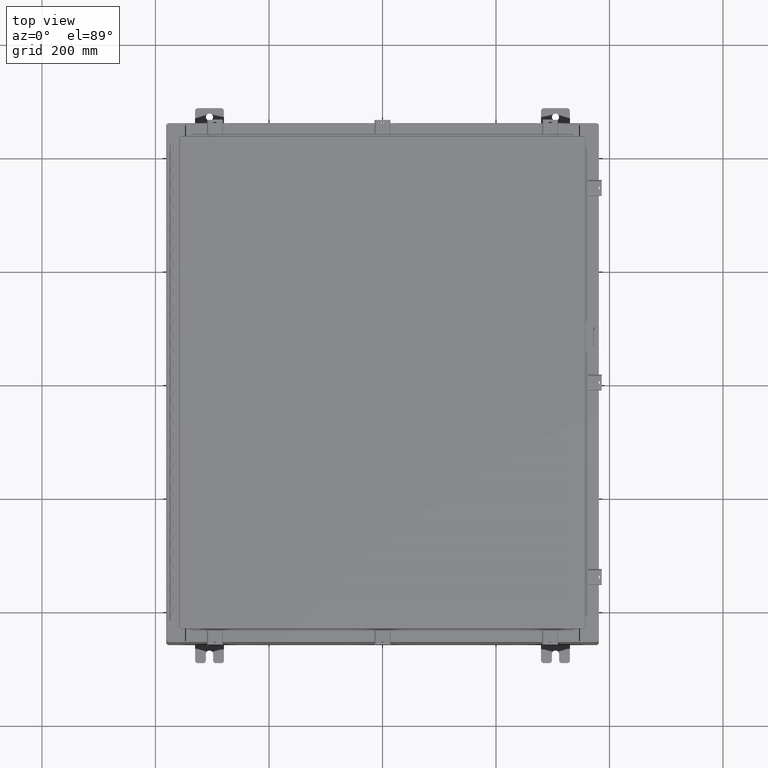
[diagram: clean part render]
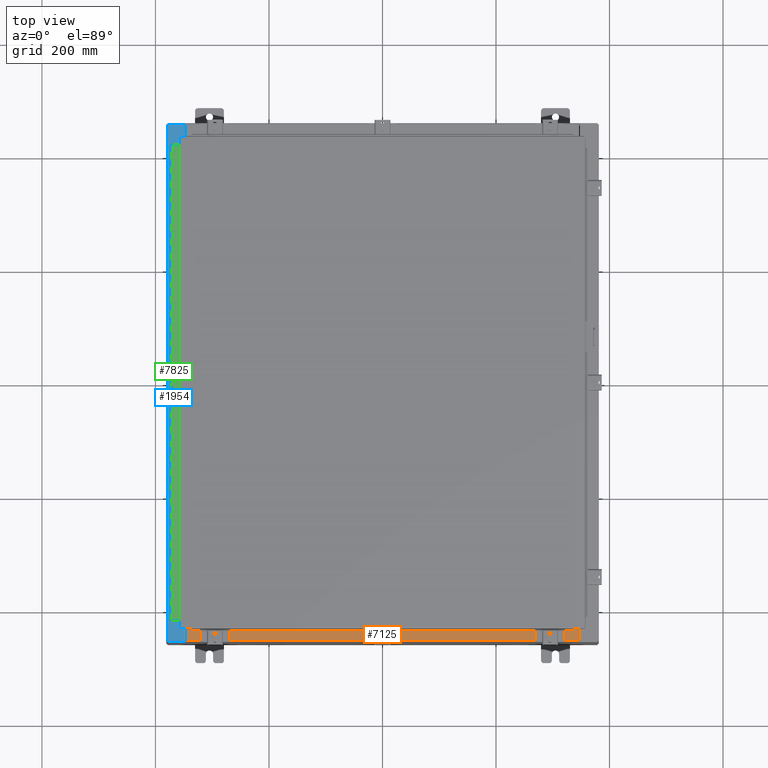
[diagram: same view with three faces highlighted in distinct colors, each labeled with its STEP entity id]
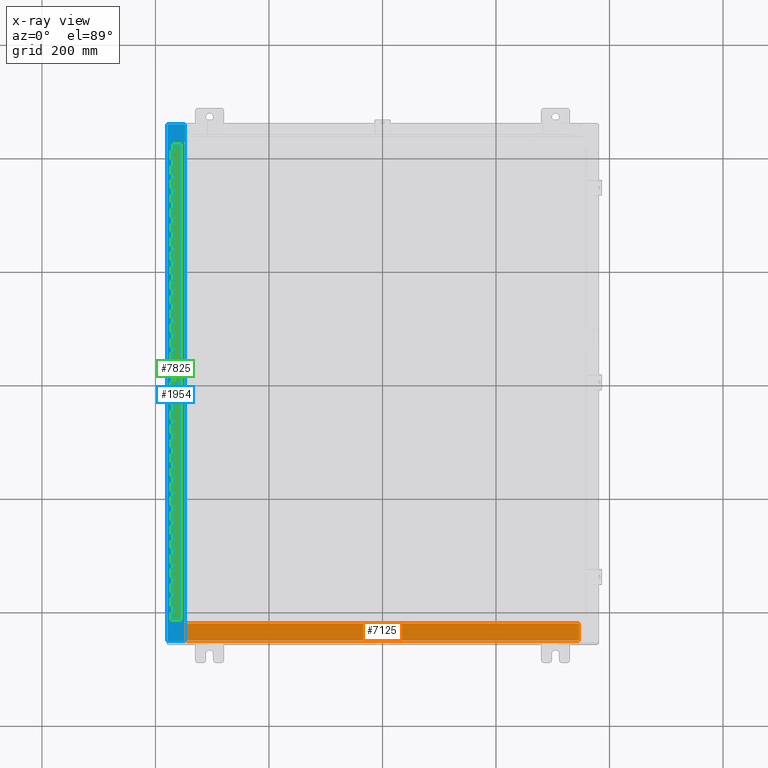
[diagram: x-ray of the same camera — body ghosted, the three highlighted faces saturated]
A machine part, top view with three faces highlighted in distinct colors.
The next image is the same camera in x-ray (body ghosted, the three faces saturated) — at least one of them is partly hidden behind the body in this view.
Their STEP definitions:

[orange] entity #7125 — the highlighted planar face has unit normal (-0, -0, 1).
#738 = DIRECTION ( 'NONE',  ( -0.0000000000000000000, 1.000000000000000000, -3.566381192773190000E-015 ) ) ;
#3192 = ORIENTED_EDGE ( 'NONE', *, *, #16261, .F. ) ;
#4120 = LINE ( 'NONE', #28577, #20826 ) ;
#5700 = DIRECTION ( 'NONE',  ( 0.0000000000000000000, -1.000000000000000000, 3.566381192773190000E-015 ) ) ;
#6643 = VERTEX_POINT ( 'NONE', #33491 ) ;
#7125 = ADVANCED_FACE ( 'NONE', ( #30251 ), #31676, .T. ) ;
#7835 = CARTESIAN_POINT ( 'NONE',  ( 13.63720000000000400, -1.287299999999999900, 6.000000000000003600 ) ) ;
#8588 = CARTESIAN_POINT ( 'NONE',  ( 0.0000000000000000000, 2.139269213755056400E-014, 5.999999999999999100 ) ) ;
#10596 = CARTESIAN_POINT ( 'NONE',  ( 13.63720000000000400, -1.287299999999999900, 6.000000000000003600 ) ) ;
#10754 = LINE ( 'NONE', #15506, #35301 ) ;
#10862 = VERTEX_POINT ( 'NONE', #10596 ) ;
#13435 = AXIS2_PLACEMENT_3D ( 'NONE', #8588, #14559, #5700 ) ;
#13485 = EDGE_CURVE ( 'NONE', #6643, #19297, #42940, .T. ) ;
#13706 = CARTESIAN_POINT ( 'NONE',  ( 13.63720000000000400, -0.08769999999999937600, 5.999999999999999100 ) ) ;
#14559 = DIRECTION ( 'NONE',  ( 0.0000000000000000000, 3.566381192773190000E-015, 1.000000000000000000 ) ) ;
#15506 = CARTESIAN_POINT ( 'NONE',  ( -3.513669507588266700E-018, -0.08769999999999972300, 5.999999999999999100 ) ) ;
#15996 = DIRECTION ( 'NONE',  ( -0.0000000000000000000, -1.000000000000000000, 3.566381192773190000E-015 ) ) ;
#16261 = EDGE_CURVE ( 'NONE', #21772, #10862, #4120, .T. ) ;
#19297 = VERTEX_POINT ( 'NONE', #32587 ) ;
#19387 = EDGE_CURVE ( 'NONE', #10862, #6643, #34591, .T. ) ;
#20826 = VECTOR ( 'NONE', #15996, 39.37007874015748100 ) ;
#21772 = VERTEX_POINT ( 'NONE', #13706 ) ;
#23875 = ORIENTED_EDGE ( 'NONE', *, *, #13485, .F. ) ;
#24169 = ORIENTED_EDGE ( 'NONE', *, *, #19387, .F. ) ;
#25125 = VECTOR ( 'NONE', #738, 39.37007874015748100 ) ;
#27941 = DIRECTION ( 'NONE',  ( -1.000000000000000000, 0.0000000000000000000, 0.0000000000000000000 ) ) ;
#28577 = CARTESIAN_POINT ( 'NONE',  ( 13.63720000000000400, -1.300299999999999800, 6.000000000000003600 ) ) ;
#30251 = FACE_OUTER_BOUND ( 'NONE', #32261, .T. ) ;
#31676 = PLANE ( 'NONE',  #13435 ) ;
#32134 = DIRECTION ( 'NONE',  ( -1.000000000000000000, 4.006464660875052000E-017, -1.428858021605520200E-031 ) ) ;
#32261 = EDGE_LOOP ( 'NONE', ( #23875, #24169, #3192, #32461 ) ) ;
#32461 = ORIENTED_EDGE ( 'NONE', *, *, #37298, .T. ) ;
#32587 = CARTESIAN_POINT ( 'NONE',  ( -13.63719999999999800, -0.08769999999999972300, 5.999999999999999100 ) ) ;
#33491 = CARTESIAN_POINT ( 'NONE',  ( -13.63719999999999800, -1.287299999999999200, 6.000000000000003600 ) ) ;
#34591 = LINE ( 'NONE', #7835, #42484 ) ;
#35301 = VECTOR ( 'NONE', #32134, 39.37007874015748100 ) ;
#37199 = CARTESIAN_POINT ( 'NONE',  ( -13.63719999999999800, -0.07469999999999973900, 5.999999999999999100 ) ) ;
#37298 = EDGE_CURVE ( 'NONE', #21772, #19297, #10754, .T. ) ;
#42484 = VECTOR ( 'NONE', #27941, 39.37007874015748100 ) ;
#42940 = LINE ( 'NONE', #37199, #25125 ) ;

[blue] entity #1954 — the highlighted planar face has unit normal (0, 0, -1).
#1014 = AXIS2_PLACEMENT_3D ( 'NONE', #43286, #23246, #3271 ) ;
#1880 = CARTESIAN_POINT ( 'NONE',  ( -13.69970000000004400, 0.0000000000000000000, 11.92530000000000900 ) ) ;
#1954 = ADVANCED_FACE ( 'NONE', ( #9523 ), #40491, .F. ) ;
#2287 = DIRECTION ( 'NONE',  ( 0.0000000000000000000, 1.000000000000000000, 0.0000000000000000000 ) ) ;
#2876 = VERTEX_POINT ( 'NONE', #36704 ) ;
#3271 = DIRECTION ( 'NONE',  ( 1.000000000000000000, 0.0000000000000000000, 0.0000000000000000000 ) ) ;
#3972 = CIRCLE ( 'NONE', #1014, 0.01867499999999949400 ) ;
#4022 = CARTESIAN_POINT ( 'NONE',  ( -13.69970000000004400, 16.63110000000000000, 11.92530000000000900 ) ) ;
#4051 = VECTOR ( 'NONE', #2287, 39.37007874015748100 ) ;
#4869 = LINE ( 'NONE', #1880, #21580 ) ;
#5196 = DIRECTION ( 'NONE',  ( 0.0000000000000000000, 1.000000000000000000, 0.0000000000000000000 ) ) ;
#5428 = EDGE_CURVE ( 'NONE', #17754, #26840, #7278, .T. ) ;
#5705 = EDGE_CURVE ( 'NONE', #26840, #31415, #40183, .T. ) ;
#6590 = CARTESIAN_POINT ( 'NONE',  ( -13.75005000000004400, -16.59374999999998900, 11.92530000000000900 ) ) ;
#6758 = EDGE_CURVE ( 'NONE', #10759, #19384, #35015, .T. ) ;
#7278 = LINE ( 'NONE', #31484, #41789 ) ;
#7455 = DIRECTION ( 'NONE',  ( 7.132762385546384700E-015, 0.0000000000000000000, -1.000000000000000000 ) ) ;
#7481 = LINE ( 'NONE', #43275, #24218 ) ;
#8034 = DIRECTION ( 'NONE',  ( 1.000000000000000000, 0.0000000000000000000, 0.0000000000000000000 ) ) ;
#8341 = CARTESIAN_POINT ( 'NONE',  ( -13.71270000000004600, -16.59374999999998900, 11.92530000000001200 ) ) ;
#8393 = ORIENTED_EDGE ( 'NONE', *, *, #28137, .F. ) ;
#9523 = FACE_OUTER_BOUND ( 'NONE', #28788, .T. ) ;
#9693 = CARTESIAN_POINT ( 'NONE',  ( -13.69970000000004400, 16.63110000000000000, 11.92530000000000900 ) ) ;
#10759 = VERTEX_POINT ( 'NONE', #40392 ) ;
#12238 = LINE ( 'NONE', #16598, #37872 ) ;
#12694 = ORIENTED_EDGE ( 'NONE', *, *, #32040, .T. ) ;
#13062 = DIRECTION ( 'NONE',  ( -1.000000000000000000, 0.0000000000000000000, 4.340572780400098900E-014 ) ) ;
#13980 = LINE ( 'NONE', #9693, #35383 ) ;
#14125 = ORIENTED_EDGE ( 'NONE', *, *, #5428, .F. ) ;
#14851 = DIRECTION ( 'NONE',  ( -0.0000000000000000000, 1.000000000000000000, -0.0000000000000000000 ) ) ;
#15434 = LINE ( 'NONE', #29853, #32147 ) ;
#16598 = CARTESIAN_POINT ( 'NONE',  ( -14.91230000000004500, 17.92530000000000000, 11.92530000000000000 ) ) ;
#16627 = EDGE_CURVE ( 'NONE', #19384, #17754, #17108, .T. ) ;
#17108 = LINE ( 'NONE', #21484, #32743 ) ;
#17754 = VERTEX_POINT ( 'NONE', #8341 ) ;
#19384 = VERTEX_POINT ( 'NONE', #34518 ) ;
#19516 = CARTESIAN_POINT ( 'NONE',  ( -14.91230000000004500, 17.92530000000000000, 11.92530000000000000 ) ) ;
#21484 = CARTESIAN_POINT ( 'NONE',  ( -13.71270000000004600, 16.59374999999999600, 11.92530000000001200 ) ) ;
#21580 = VECTOR ( 'NONE', #5196, 39.37007874015748100 ) ;
#22090 = AXIS2_PLACEMENT_3D ( 'NONE', #38442, #38254, #37968 ) ;
#22965 = ORIENTED_EDGE ( 'NONE', *, *, #6758, .F. ) ;
#23246 = DIRECTION ( 'NONE',  ( -7.132762385546384700E-015, -0.0000000000000000000, 1.000000000000000000 ) ) ;
#24218 = VECTOR ( 'NONE', #33117, 39.37007874015748100 ) ;
#24646 = DIRECTION ( 'NONE',  ( -1.000000000000000000, 0.0000000000000000000, 0.0000000000000000000 ) ) ;
#24969 = DIRECTION ( 'NONE',  ( -1.000000000000000000, 0.0000000000000000000, -7.132762385546384700E-015 ) ) ;
#25995 = VERTEX_POINT ( 'NONE', #34923 ) ;
#26123 = VECTOR ( 'NONE', #8034, 39.37007874015748100 ) ;
#26840 = VERTEX_POINT ( 'NONE', #6590 ) ;
#27022 = LINE ( 'NONE', #39069, #33329 ) ;
#27177 = VERTEX_POINT ( 'NONE', #31326 ) ;
#28137 = EDGE_CURVE ( 'NONE', #33101, #32744, #12238, .T. ) ;
#28788 = EDGE_LOOP ( 'NONE', ( #42802, #40446, #33931, #8393, #29106, #12694, #35393, #37240, #14125, #32858, #22965, #39256 ) ) ;
#29084 = DIRECTION ( 'NONE',  ( -1.000000000000000000, 0.0000000000000000000, -7.132762385546384700E-015 ) ) ;
#29106 = ORIENTED_EDGE ( 'NONE', *, *, #42270, .T. ) ;
#29853 = CARTESIAN_POINT ( 'NONE',  ( -8.532114493236863100E-014, -17.92530000000000000, 11.92530000000010800 ) ) ;
#30043 = EDGE_CURVE ( 'NONE', #27177, #10759, #3972, .T. ) ;
#30622 = LINE ( 'NONE', #42298, #4051 ) ;
#31088 = EDGE_CURVE ( 'NONE', #31415, #25995, #7481, .T. ) ;
#31326 = CARTESIAN_POINT ( 'NONE',  ( -13.75005000000004400, 16.63110000000000000, 11.92530000000000900 ) ) ;
#31415 = VERTEX_POINT ( 'NONE', #31650 ) ;
#31484 = CARTESIAN_POINT ( 'NONE',  ( -13.71270000000004600, -16.59374999999998900, 11.92530000000001200 ) ) ;
#31650 = CARTESIAN_POINT ( 'NONE',  ( -13.75005000000004400, -16.63109999999998600, 11.92530000000000900 ) ) ;
#32040 = EDGE_CURVE ( 'NONE', #2876, #25995, #4869, .T. ) ;
#32147 = VECTOR ( 'NONE', #36466, 39.37007874015748100 ) ;
#32743 = VECTOR ( 'NONE', #37360, 39.37007874015748100 ) ;
#32744 = VERTEX_POINT ( 'NONE', #19516 ) ;
#32858 = ORIENTED_EDGE ( 'NONE', *, *, #16627, .F. ) ;
#32924 = VERTEX_POINT ( 'NONE', #37183 ) ;
#32990 = CARTESIAN_POINT ( 'NONE',  ( -13.75005000000004400, 16.59375000000000000, 11.92530000000001200 ) ) ;
#33101 = VERTEX_POINT ( 'NONE', #35255 ) ;
#33117 = DIRECTION ( 'NONE',  ( 1.000000000000000000, 0.0000000000000000000, -4.340572780400098900E-014 ) ) ;
#33329 = VECTOR ( 'NONE', #29084, 39.37007874015748100 ) ;
#33931 = ORIENTED_EDGE ( 'NONE', *, *, #34339, .T. ) ;
#34339 = EDGE_CURVE ( 'NONE', #32924, #32744, #27022, .T. ) ;
#34518 = CARTESIAN_POINT ( 'NONE',  ( -13.71270000000004600, 16.59375000000000000, 11.92530000000001200 ) ) ;
#34923 = CARTESIAN_POINT ( 'NONE',  ( -13.69970000000004400, -16.63109999999998600, 11.92530000000000900 ) ) ;
#35015 = LINE ( 'NONE', #32990, #26123 ) ;
#35131 = EDGE_CURVE ( 'NONE', #38946, #27177, #13980, .T. ) ;
#35255 = CARTESIAN_POINT ( 'NONE',  ( -14.91230000000004500, -17.92530000000000000, 11.92530000000000000 ) ) ;
#35383 = VECTOR ( 'NONE', #13062, 39.37007874015748100 ) ;
#35393 = ORIENTED_EDGE ( 'NONE', *, *, #31088, .F. ) ;
#35458 = EDGE_CURVE ( 'NONE', #38946, #32924, #30622, .T. ) ;
#36466 = DIRECTION ( 'NONE',  ( 1.000000000000000000, -0.0000000000000000000, 7.132762385546384700E-015 ) ) ;
#36704 = CARTESIAN_POINT ( 'NONE',  ( -13.69970000000004400, -17.92530000000000000, 11.92530000000000900 ) ) ;
#37183 = CARTESIAN_POINT ( 'NONE',  ( -13.69970000000004400, 17.92530000000000000, 11.92530000000000900 ) ) ;
#37240 = ORIENTED_EDGE ( 'NONE', *, *, #5705, .F. ) ;
#37360 = DIRECTION ( 'NONE',  ( -0.0000000000000000000, -1.000000000000000000, -0.0000000000000000000 ) ) ;
#37393 = AXIS2_PLACEMENT_3D ( 'NONE', #38281, #7455, #24969 ) ;
#37872 = VECTOR ( 'NONE', #14851, 39.37007874015748100 ) ;
#37968 = DIRECTION ( 'NONE',  ( 1.000000000000000000, 0.0000000000000000000, 0.0000000000000000000 ) ) ;
#38254 = DIRECTION ( 'NONE',  ( -7.132762385546384700E-015, -0.0000000000000000000, 1.000000000000000000 ) ) ;
#38281 = CARTESIAN_POINT ( 'NONE',  ( -8.532114493236863100E-014, 0.0000000000000000000, 11.92530000000010800 ) ) ;
#38442 = CARTESIAN_POINT ( 'NONE',  ( -13.75005000000004400, -16.61242499999998800, 11.92530000000001200 ) ) ;
#38946 = VERTEX_POINT ( 'NONE', #4022 ) ;
#39069 = CARTESIAN_POINT ( 'NONE',  ( -8.532114493236863100E-014, 17.92530000000000000, 11.92530000000010800 ) ) ;
#39256 = ORIENTED_EDGE ( 'NONE', *, *, #30043, .F. ) ;
#40183 = CIRCLE ( 'NONE', #22090, 0.01867499999999949400 ) ;
#40392 = CARTESIAN_POINT ( 'NONE',  ( -13.75005000000004400, 16.59375000000000000, 11.92530000000000900 ) ) ;
#40446 = ORIENTED_EDGE ( 'NONE', *, *, #35458, .T. ) ;
#40491 = PLANE ( 'NONE',  #37393 ) ;
#41789 = VECTOR ( 'NONE', #24646, 39.37007874015748100 ) ;
#42270 = EDGE_CURVE ( 'NONE', #33101, #2876, #15434, .T. ) ;
#42298 = CARTESIAN_POINT ( 'NONE',  ( -13.69970000000004400, 0.0000000000000000000, 11.92530000000000900 ) ) ;
#42802 = ORIENTED_EDGE ( 'NONE', *, *, #35131, .F. ) ;
#43275 = CARTESIAN_POINT ( 'NONE',  ( -13.75005000000004400, -16.63109999999998600, 11.92530000000001200 ) ) ;
#43286 = CARTESIAN_POINT ( 'NONE',  ( -13.75005000000004400, 16.61242500000000200, 11.92530000000001200 ) ) ;

[green] entity #7825 — the highlighted planar face has unit normal (-0, -0, 1).
#17 = VERTEX_POINT ( 'NONE', #42479 ) ;
#91 = EDGE_CURVE ( 'NONE', #3650, #27212, #20184, .T. ) ;
#141 = EDGE_CURVE ( 'NONE', #2869, #37410, #26931, .T. ) ;
#198 = VECTOR ( 'NONE', #14461, 39.37007874015748100 ) ;
#210 = ORIENTED_EDGE ( 'NONE', *, *, #12131, .F. ) ;
#212 = VERTEX_POINT ( 'NONE', #27020 ) ;
#246 = LINE ( 'NONE', #26815, #16893 ) ;
#263 = DIRECTION ( 'NONE',  ( 0.0000000000000000000, -0.0000000000000000000, -1.000000000000000000 ) ) ;
#266 = CARTESIAN_POINT ( 'NONE',  ( -0.6869999999999978300, 0.6754999999999996600, -33.00000000000000000 ) ) ;
#328 = DIRECTION ( 'NONE',  ( 3.369016658928398200E-015, 1.000000000000000000, 0.0000000000000000000 ) ) ;
#364 = VECTOR ( 'NONE', #21887, 39.37007874015748100 ) ;
#434 = VERTEX_POINT ( 'NONE', #27915 ) ;
#444 = CARTESIAN_POINT ( 'NONE',  ( -0.6869999999999973900, 0.8004999999999995500, -17.00000000000000000 ) ) ;
#450 = CARTESIAN_POINT ( 'NONE',  ( -0.6869999999999973900, 0.8004999999999995500, -4.000000000000000000 ) ) ;
#453 = EDGE_CURVE ( 'NONE', #37195, #14308, #43155, .T. ) ;
#461 = ORIENTED_EDGE ( 'NONE', *, *, #32087, .F. ) ;
#610 = VECTOR ( 'NONE', #37835, 39.37007874015748100 ) ;
#631 = LINE ( 'NONE', #19453, #26144 ) ;
#755 = LINE ( 'NONE', #30137, #35168 ) ;
#834 = EDGE_CURVE ( 'NONE', #28377, #9901, #6001, .T. ) ;
#856 = ORIENTED_EDGE ( 'NONE', *, *, #29475, .F. ) ;
#870 = LINE ( 'NONE', #33054, #17503 ) ;
#902 = EDGE_CURVE ( 'NONE', #11652, #24939, #20657, .T. ) ;
#932 = CARTESIAN_POINT ( 'NONE',  ( -0.6869999999999973900, 0.8004999999999995500, -22.00000000000000000 ) ) ;
#944 = LINE ( 'NONE', #18303, #35360 ) ;
#947 = DIRECTION ( 'NONE',  ( 0.0000000000000000000, -0.0000000000000000000, -1.000000000000000000 ) ) ;
#957 = VECTOR ( 'NONE', #20136, 39.37007874015748100 ) ;
#968 = LINE ( 'NONE', #36446, #8700 ) ;
#1023 = VECTOR ( 'NONE', #30542, 39.37007874015748100 ) ;
#1053 = EDGE_CURVE ( 'NONE', #7925, #4903, #42054, .T. ) ;
#1083 = CARTESIAN_POINT ( 'NONE',  ( -0.6869999999999978300, 0.6754999999999996600, -33.00000000000000000 ) ) ;
#1174 = CARTESIAN_POINT ( 'NONE',  ( -0.6869999999999978300, 0.6754999999999996600, -33.00000000000000000 ) ) ;
#1325 = EDGE_CURVE ( 'NONE', #29071, #20885, #8049, .T. ) ;
#1333 = CARTESIAN_POINT ( 'NONE',  ( -0.6870000000000022800, -0.6245000000000003900, 0.0000000000000000000 ) ) ;
#1360 = VECTOR ( 'NONE', #27773, 39.37007874015748100 ) ;
#1376 = LINE ( 'NONE', #40931, #18027 ) ;
#1398 = CARTESIAN_POINT ( 'NONE',  ( -0.6869999999999978300, 0.6754999999999996600, -33.00000000000000000 ) ) ;
#1401 = LINE ( 'NONE', #6467, #35824 ) ;
#1403 = VECTOR ( 'NONE', #263, 39.37007874015748100 ) ;
#1451 = CARTESIAN_POINT ( 'NONE',  ( -0.6869999999999982800, 0.5504999999999997700, -23.50000000000000000 ) ) ;
#1492 = EDGE_CURVE ( 'NONE', #5751, #37195, #17423, .T. ) ;
#1532 = ORIENTED_EDGE ( 'NONE', *, *, #33229, .T. ) ;
#1573 = CARTESIAN_POINT ( 'NONE',  ( -0.6869999999999982800, 0.5504999999999997700, -9.000000000000000000 ) ) ;
#1623 = LINE ( 'NONE', #31164, #33920 ) ;
#1644 = LINE ( 'NONE', #7588, #27172 ) ;
#1654 = ORIENTED_EDGE ( 'NONE', *, *, #42607, .F. ) ;
#1687 = EDGE_CURVE ( 'NONE', #43049, #22318, #26800, .T. ) ;
#1699 = EDGE_CURVE ( 'NONE', #8862, #43168, #246, .T. ) ;
#1756 = VERTEX_POINT ( 'NONE', #4382 ) ;
#1799 = VERTEX_POINT ( 'NONE', #17809 ) ;
#1840 = PLANE ( 'NONE',  #42670 ) ;
#1845 = ORIENTED_EDGE ( 'NONE', *, *, #21958, .F. ) ;
#1905 = CARTESIAN_POINT ( 'NONE',  ( -0.6869999999999978300, 0.6754999999999996600, -24.50000000000000000 ) ) ;
#1920 = CARTESIAN_POINT ( 'NONE',  ( -0.6869999999999978300, 0.6754999999999996600, -31.00000000000000000 ) ) ;
#1933 = CARTESIAN_POINT ( 'NONE',  ( -0.6869999999999973900, 0.8004999999999995500, -1.000000000000000000 ) ) ;
#1941 = VECTOR ( 'NONE', #25932, 39.37007874015748100 ) ;
#2016 = CARTESIAN_POINT ( 'NONE',  ( -0.6869999999999978300, 0.6754999999999996600, 0.0000000000000000000 ) ) ;
#2082 = DIRECTION ( 'NONE',  ( 0.0000000000000000000, 0.0000000000000000000, 1.000000000000000000 ) ) ;
#2093 = ORIENTED_EDGE ( 'NONE', *, *, #36405, .F. ) ;
#2116 = VERTEX_POINT ( 'NONE', #19246 ) ;
#2149 = ORIENTED_EDGE ( 'NONE', *, *, #26221, .F. ) ;
#2167 = DIRECTION ( 'NONE',  ( 0.0000000000000000000, 0.0000000000000000000, 1.000000000000000000 ) ) ;
#2233 = EDGE_CURVE ( 'NONE', #22745, #27064, #17886, .T. ) ;
#2283 = ORIENTED_EDGE ( 'NONE', *, *, #22747, .T. ) ;
#2311 = VERTEX_POINT ( 'NONE', #25965 ) ;
#2315 = LINE ( 'NONE', #27505, #16904 ) ;
#2317 = CARTESIAN_POINT ( 'NONE',  ( -0.6869999999999982800, 0.5504999999999997700, -9.500000000000000000 ) ) ;
#2352 = ORIENTED_EDGE ( 'NONE', *, *, #32022, .F. ) ;
#2481 = CARTESIAN_POINT ( 'NONE',  ( -0.6869999999999973900, 0.8004999999999995500, -13.50000000000000000 ) ) ;
#2490 = ORIENTED_EDGE ( 'NONE', *, *, #17548, .F. ) ;
#2498 = VERTEX_POINT ( 'NONE', #10403 ) ;
#2587 = CARTESIAN_POINT ( 'NONE',  ( -0.6869999999999978300, 0.6754999999999996600, -12.99999999999999800 ) ) ;
#2632 = DIRECTION ( 'NONE',  ( 0.0000000000000000000, 0.0000000000000000000, 1.000000000000000000 ) ) ;
#2678 = EDGE_LOOP ( 'NONE', ( #28212, #27924, #9018, #20990, #23291, #41233, #43092, #856, #7178, #38938, #1845, #16619, #2283, #22651, #30818, #30371, #28927, #13406, #18391, #17732, #12451, #17552, #42767, #39884, #23530, #3239, #2149, #30751, #28503, #3373, #28972, #7335, #18083, #22046, #11177, #26884, #42186, #7859, #27725, #23101, #27080, #25794, #32216, #38249, #19092, #12033, #13338, #11507, #35898, #11868, #16437, #18587, #37716, #13938, #21578, #41137, #1532, #13922, #8037, #10899, #16752, #4834, #42770, #2850, #12860, #31100, #25864, #8479, #7394, #33479, #39428, #29204, #5529, #39613, #6391, #15992, #21261, #26519, #30081, #39245, #34633, #34902, #19832, #10144, #23824, #3873, #10982, #19432, #39406, #14099, #2093, #34247, #35304, #35459, #17290, #32218, #18821, #36082, #21370, #20594, #10081, #19714, #2490, #22694, #26194, #41209, #2352, #35618, #4494, #4720, #43015, #14585, #25050, #33560, #1654, #19211, #3454, #16484, #21445, #210, #15953, #14002, #24086, #28330, #9800, #29706, #32463, #6679, #21832, #23787, #2713, #461, #7762, #26974 ) ) ;
#2693 = VECTOR ( 'NONE', #6879, 39.37007874015748100 ) ;
#2703 = DIRECTION ( 'NONE',  ( 3.389037039080723100E-015, 1.000000000000000000, -0.0000000000000000000 ) ) ;
#2713 = ORIENTED_EDGE ( 'NONE', *, *, #4238, .F. ) ;
#2714 = VERTEX_POINT ( 'NONE', #35570 ) ;
#2723 = EDGE_CURVE ( 'NONE', #36796, #19954, #13145, .T. ) ;
#2724 = VECTOR ( 'NONE', #42546, 39.37007874015748100 ) ;
#2850 = ORIENTED_EDGE ( 'NONE', *, *, #19652, .F. ) ;
#2869 = VERTEX_POINT ( 'NONE', #12313 ) ;
#2874 = CARTESIAN_POINT ( 'NONE',  ( -0.6869999999999982800, 0.5504999999999997700, -0.5000000000000000000 ) ) ;
#2887 = VECTOR ( 'NONE', #10527, 39.37007874015748100 ) ;
#2923 = VECTOR ( 'NONE', #35086, 39.37007874015748100 ) ;
#2987 = EDGE_CURVE ( 'NONE', #16632, #2311, #20489, .T. ) ;
#2996 = CARTESIAN_POINT ( 'NONE',  ( -0.6869999999999973900, 0.8004999999999995500, -29.50000000000000000 ) ) ;
#2999 = LINE ( 'NONE', #42902, #11827 ) ;
#3006 = EDGE_CURVE ( 'NONE', #9333, #11119, #11562, .T. ) ;
#3109 = DIRECTION ( 'NONE',  ( 0.0000000000000000000, -0.0000000000000000000, -1.000000000000000000 ) ) ;
#3151 = LINE ( 'NONE', #21791, #10933 ) ;
#3157 = VERTEX_POINT ( 'NONE', #28913 ) ;
#3158 = DIRECTION ( 'NONE',  ( 0.0000000000000000000, -0.0000000000000000000, -1.000000000000000000 ) ) ;
#3222 = LINE ( 'NONE', #3724, #28754 ) ;
#3228 = VERTEX_POINT ( 'NONE', #10810 ) ;
#3239 = ORIENTED_EDGE ( 'NONE', *, *, #9741, .F. ) ;
#3280 = CARTESIAN_POINT ( 'NONE',  ( -0.6869999999999978300, 0.6754999999999996600, -15.50000000000000000 ) ) ;
#3324 = CARTESIAN_POINT ( 'NONE',  ( -0.6869999999999973900, 0.8004999999999995500, -31.50000000000000400 ) ) ;
#3373 = ORIENTED_EDGE ( 'NONE', *, *, #20331, .F. ) ;
#3434 = CARTESIAN_POINT ( 'NONE',  ( -0.6869999999999982800, 0.5504999999999997700, -7.499999999999999100 ) ) ;
#3454 = ORIENTED_EDGE ( 'NONE', *, *, #22865, .T. ) ;
#3456 = VERTEX_POINT ( 'NONE', #40280 ) ;
#3457 = LINE ( 'NONE', #8622, #38973 ) ;
#3516 = DIRECTION ( 'NONE',  ( -3.389037039080723100E-015, -1.000000000000000000, 0.0000000000000000000 ) ) ;
#3549 = CARTESIAN_POINT ( 'NONE',  ( -0.6869999999999982800, 0.5504999999999997700, -29.50000000000000000 ) ) ;
#3557 = CARTESIAN_POINT ( 'NONE',  ( -0.6869999999999982800, 0.5504999999999997700, -10.00000000000000000 ) ) ;
#3583 = LINE ( 'NONE', #4804, #19227 ) ;
#3611 = VECTOR ( 'NONE', #33326, 39.37007874015748100 ) ;
#3623 = DIRECTION ( 'NONE',  ( 0.0000000000000000000, 0.0000000000000000000, 1.000000000000000000 ) ) ;
#3650 = VERTEX_POINT ( 'NONE', #21055 ) ;
#3697 = EDGE_CURVE ( 'NONE', #24131, #30708, #29770, .T. ) ;
#3719 = EDGE_CURVE ( 'NONE', #39408, #5811, #37663, .T. ) ;
#3724 = CARTESIAN_POINT ( 'NONE',  ( -0.6869999999999978300, 0.6754999999999996600, -33.00000000000000000 ) ) ;
#3760 = VERTEX_POINT ( 'NONE', #22183 ) ;
#3764 = CARTESIAN_POINT ( 'NONE',  ( -0.6869999999999973900, 0.8004999999999995500, -6.499999999999999100 ) ) ;
#3813 = CARTESIAN_POINT ( 'NONE',  ( -0.6869999999999982800, 0.5504999999999997700, -24.50000000000000000 ) ) ;
#3864 = DIRECTION ( 'NONE',  ( 0.0000000000000000000, -0.0000000000000000000, -1.000000000000000000 ) ) ;
#3873 = ORIENTED_EDGE ( 'NONE', *, *, #36109, .F. ) ;
#3945 = VECTOR ( 'NONE', #23809, 39.37007874015748100 ) ;
#4047 = VERTEX_POINT ( 'NONE', #25236 ) ;
#4238 = EDGE_CURVE ( 'NONE', #24212, #31038, #11533, .T. ) ;
#4242 = CARTESIAN_POINT ( 'NONE',  ( -0.6869999999999978300, 0.6754999999999996600, -26.50000000000000400 ) ) ;
#4272 = DIRECTION ( 'NONE',  ( 3.389037039080723100E-015, 1.000000000000000000, -0.0000000000000000000 ) ) ;
#4331 = EDGE_CURVE ( 'NONE', #18245, #31735, #631, .T. ) ;
#4333 = CARTESIAN_POINT ( 'NONE',  ( -0.6869999999999978300, 0.6754999999999996600, -8.500000000000000000 ) ) ;
#4370 = DIRECTION ( 'NONE',  ( 0.0000000000000000000, -0.0000000000000000000, -1.000000000000000000 ) ) ;
#4382 = CARTESIAN_POINT ( 'NONE',  ( -0.6869999999999978300, 0.6754999999999996600, -3.500000000000000000 ) ) ;
#4435 = CARTESIAN_POINT ( 'NONE',  ( -0.6869999999999982800, 0.5504999999999997700, -32.50000000000000000 ) ) ;
#4454 = CARTESIAN_POINT ( 'NONE',  ( -0.6869999999999978300, 0.6754999999999996600, -33.00000000000000000 ) ) ;
#4481 = LINE ( 'NONE', #444, #38947 ) ;
#4494 = ORIENTED_EDGE ( 'NONE', *, *, #27809, .T. ) ;
#4577 = LINE ( 'NONE', #3764, #21299 ) ;
#4614 = CARTESIAN_POINT ( 'NONE',  ( -0.6869999999999978300, 0.6754999999999996600, -1.000000000000000000 ) ) ;
#4690 = VECTOR ( 'NONE', #36413, 39.37007874015748100 ) ;
#4720 = ORIENTED_EDGE ( 'NONE', *, *, #17360, .F. ) ;
#4731 = CARTESIAN_POINT ( 'NONE',  ( -0.6869999999999982800, 0.5504999999999997700, -21.50000000000000400 ) ) ;
#4769 = DIRECTION ( 'NONE',  ( 3.389037039080723100E-015, 1.000000000000000000, -0.0000000000000000000 ) ) ;
#4804 = CARTESIAN_POINT ( 'NONE',  ( -0.6869999999999978300, 0.6754999999999996600, -33.00000000000000000 ) ) ;
#4821 = CARTESIAN_POINT ( 'NONE',  ( -0.6869999999999978300, 0.6754999999999996600, -21.50000000000000400 ) ) ;
#4834 = ORIENTED_EDGE ( 'NONE', *, *, #2723, .F. ) ;
#4844 = VECTOR ( 'NONE', #37822, 39.37007874015748100 ) ;
#4858 = CARTESIAN_POINT ( 'NONE',  ( -0.6869999999999982800, 0.5504999999999997700, -5.500000000000000000 ) ) ;
#4879 = DIRECTION ( 'NONE',  ( 0.0000000000000000000, 0.0000000000000000000, 1.000000000000000000 ) ) ;
#4903 = VERTEX_POINT ( 'NONE', #25707 ) ;
#4963 = VECTOR ( 'NONE', #31850, 39.37007874015748100 ) ;
#4969 = LINE ( 'NONE', #24065, #3945 ) ;
#4971 = VECTOR ( 'NONE', #2703, 39.37007874015748100 ) ;
#5258 = CARTESIAN_POINT ( 'NONE',  ( -0.6869999999999978300, 0.6754999999999996600, -33.00000000000000000 ) ) ;
#5333 = VECTOR ( 'NONE', #23277, 39.37007874015748100 ) ;
#5363 = LINE ( 'NONE', #13558, #30927 ) ;
#5393 = CARTESIAN_POINT ( 'NONE',  ( -0.6869999999999973900, 0.8004999999999995500, -1.499999999999999800 ) ) ;
#5409 = VECTOR ( 'NONE', #20286, 39.37007874015748100 ) ;
#5498 = CARTESIAN_POINT ( 'NONE',  ( -0.6869999999999973900, 0.8004999999999995500, -23.00000000000000000 ) ) ;
#5529 = ORIENTED_EDGE ( 'NONE', *, *, #3697, .T. ) ;
#5586 = DIRECTION ( 'NONE',  ( -3.389037039080723100E-015, -1.000000000000000000, 0.0000000000000000000 ) ) ;
#5751 = VERTEX_POINT ( 'NONE', #39833 ) ;
#5769 = CARTESIAN_POINT ( 'NONE',  ( -0.6869999999999982800, 0.5504999999999997700, -28.50000000000000000 ) ) ;
#5771 = VERTEX_POINT ( 'NONE', #39465 ) ;
#5811 = VERTEX_POINT ( 'NONE', #29293 ) ;
#5871 = CARTESIAN_POINT ( 'NONE',  ( -0.6869999999999982800, 0.5504999999999997700, -7.499999999999999100 ) ) ;
#5897 = LINE ( 'NONE', #31755, #24709 ) ;
#5988 = VERTEX_POINT ( 'NONE', #6181 ) ;
#6001 = LINE ( 'NONE', #450, #4971 ) ;
#6051 = CARTESIAN_POINT ( 'NONE',  ( -0.6869999999999978300, 0.6754999999999996600, -6.000000000000000900 ) ) ;
#6135 = CARTESIAN_POINT ( 'NONE',  ( -0.6869999999999978300, 0.6754999999999996600, -33.00000000000000000 ) ) ;
#6145 = VECTOR ( 'NONE', #8818, 39.37007874015748100 ) ;
#6181 = CARTESIAN_POINT ( 'NONE',  ( -0.6869999999999978300, 0.6754999999999996600, -8.000000000000000000 ) ) ;
#6259 = CARTESIAN_POINT ( 'NONE',  ( -0.6869999999999973900, 0.8004999999999995500, -11.99999999999999800 ) ) ;
#6329 = DIRECTION ( 'NONE',  ( 3.389037039080723100E-015, 1.000000000000000000, -0.0000000000000000000 ) ) ;
#6359 = EDGE_CURVE ( 'NONE', #21942, #20134, #3222, .T. ) ;
#6391 = ORIENTED_EDGE ( 'NONE', *, *, #26259, .F. ) ;
#6418 = LINE ( 'NONE', #30266, #39868 ) ;
#6426 = VERTEX_POINT ( 'NONE', #11722 ) ;
#6449 = VECTOR ( 'NONE', #23760, 39.37007874015748100 ) ;
#6467 = CARTESIAN_POINT ( 'NONE',  ( -0.6869999999999973900, 0.8004999999999995500, -26.00000000000000000 ) ) ;
#6488 = CARTESIAN_POINT ( 'NONE',  ( -0.6869999999999982800, 0.5504999999999997700, -17.99999999999999600 ) ) ;
#6547 = DIRECTION ( 'NONE',  ( -3.389037039080723100E-015, -1.000000000000000000, 0.0000000000000000000 ) ) ;
#6563 = DIRECTION ( 'NONE',  ( 3.389037039080723100E-015, 1.000000000000000000, -0.0000000000000000000 ) ) ;
#6575 = DIRECTION ( 'NONE',  ( 0.0000000000000000000, -0.0000000000000000000, -1.000000000000000000 ) ) ;
#6648 = CARTESIAN_POINT ( 'NONE',  ( -0.6869999999999978300, 0.6754999999999996600, -33.00000000000000000 ) ) ;
#6679 = ORIENTED_EDGE ( 'NONE', *, *, #30438, .F. ) ;
#6701 = VERTEX_POINT ( 'NONE', #25106 ) ;
#6707 = LINE ( 'NONE', #266, #14533 ) ;
#6723 = VERTEX_POINT ( 'NONE', #40482 ) ;
#6741 = EDGE_CURVE ( 'NONE', #24292, #33414, #38186, .T. ) ;
#6802 = DIRECTION ( 'NONE',  ( 0.0000000000000000000, 0.0000000000000000000, 1.000000000000000000 ) ) ;
#6861 = DIRECTION ( 'NONE',  ( 3.389037039080723100E-015, 1.000000000000000000, -0.0000000000000000000 ) ) ;
#6875 = LINE ( 'NONE', #9073, #41379 ) ;
#6879 = DIRECTION ( 'NONE',  ( 0.0000000000000000000, -0.0000000000000000000, -1.000000000000000000 ) ) ;
#6893 = DIRECTION ( 'NONE',  ( 0.0000000000000000000, 0.0000000000000000000, 1.000000000000000000 ) ) ;
#6937 = CARTESIAN_POINT ( 'NONE',  ( -0.6869999999999982800, 0.5504999999999997700, -23.99999999999999600 ) ) ;
#6945 = EDGE_CURVE ( 'NONE', #13007, #12011, #27670, .T. ) ;
#7031 = LINE ( 'NONE', #38575, #14847 ) ;
#7041 = CARTESIAN_POINT ( 'NONE',  ( -0.6869999999999982800, 0.5504999999999997700, -26.50000000000000400 ) ) ;
#7056 = VERTEX_POINT ( 'NONE', #42545 ) ;
#7088 = LINE ( 'NONE', #14154, #23816 ) ;
#7102 = CARTESIAN_POINT ( 'NONE',  ( -0.6869999999999982800, 0.5504999999999997700, -26.00000000000000000 ) ) ;
#7104 = EDGE_CURVE ( 'NONE', #11652, #30035, #13560, .T. ) ;
#7178 = ORIENTED_EDGE ( 'NONE', *, *, #22368, .T. ) ;
#7195 = LINE ( 'NONE', #5498, #6145 ) ;
#7262 = CARTESIAN_POINT ( 'NONE',  ( -0.6869999999999982800, 0.5504999999999997700, -7.000000000000000000 ) ) ;
#7335 = ORIENTED_EDGE ( 'NONE', *, *, #29861, .F. ) ;
#7394 = ORIENTED_EDGE ( 'NONE', *, *, #20566, .T. ) ;
#7418 = LINE ( 'NONE', #19926, #5333 ) ;
#7496 = EDGE_CURVE ( 'NONE', #39876, #39782, #7794, .T. ) ;
#7585 = VECTOR ( 'NONE', #38114, 39.37007874015748100 ) ;
#7588 = CARTESIAN_POINT ( 'NONE',  ( -0.6869999999999973900, 0.8004999999999995500, -11.00000000000000000 ) ) ;
#7762 = ORIENTED_EDGE ( 'NONE', *, *, #16222, .T. ) ;
#7768 = LINE ( 'NONE', #32210, #42287 ) ;
#7771 = DIRECTION ( 'NONE',  ( 0.0000000000000000000, -0.0000000000000000000, -1.000000000000000000 ) ) ;
#7794 = LINE ( 'NONE', #6648, #25549 ) ;
#7809 = LINE ( 'NONE', #42435, #42324 ) ;
#7825 = ADVANCED_FACE ( 'NONE', ( #12961 ), #1840, .T. ) ;
#7833 = DIRECTION ( 'NONE',  ( -3.389037039080723100E-015, -1.000000000000000000, 0.0000000000000000000 ) ) ;
#7854 = LINE ( 'NONE', #39239, #25605 ) ;
#7859 = ORIENTED_EDGE ( 'NONE', *, *, #2233, .F. ) ;
#7869 = VECTOR ( 'NONE', #26703, 39.37007874015748100 ) ;
#7917 = LINE ( 'NONE', #1398, #23601 ) ;
#7925 = VERTEX_POINT ( 'NONE', #17976 ) ;
#8005 = EDGE_CURVE ( 'NONE', #36392, #21542, #6707, .T. ) ;
#8032 = LINE ( 'NONE', #41685, #9027 ) ;
#8037 = ORIENTED_EDGE ( 'NONE', *, *, #39765, .F. ) ;
#8049 = LINE ( 'NONE', #30077, #24761 ) ;
#8134 = VERTEX_POINT ( 'NONE', #1920 ) ;
#8141 = CARTESIAN_POINT ( 'NONE',  ( -0.6869999999999973900, 0.8004999999999995500, -22.50000000000000000 ) ) ;
#8145 = DIRECTION ( 'NONE',  ( 0.0000000000000000000, -0.0000000000000000000, -1.000000000000000000 ) ) ;
#8170 = CARTESIAN_POINT ( 'NONE',  ( -0.6869999999999973900, 0.8004999999999995500, -30.50000000000000400 ) ) ;
#8202 = DIRECTION ( 'NONE',  ( 0.0000000000000000000, -0.0000000000000000000, -1.000000000000000000 ) ) ;
#8237 = VECTOR ( 'NONE', #26240, 39.37007874015748100 ) ;
#8361 = VERTEX_POINT ( 'NONE', #28267 ) ;
#8387 = DIRECTION ( 'NONE',  ( 0.0000000000000000000, -0.0000000000000000000, -1.000000000000000000 ) ) ;
#8402 = VERTEX_POINT ( 'NONE', #4821 ) ;
#8428 = DIRECTION ( 'NONE',  ( 0.0000000000000000000, -0.0000000000000000000, -1.000000000000000000 ) ) ;
#8447 = CARTESIAN_POINT ( 'NONE',  ( -0.6869999999999978300, 0.6754999999999996600, -33.00000000000000000 ) ) ;
#8462 = CARTESIAN_POINT ( 'NONE',  ( -0.6869999999999982800, 0.5504999999999997700, -18.50000000000000000 ) ) ;
#8473 = LINE ( 'NONE', #26556, #40897 ) ;
#8479 = ORIENTED_EDGE ( 'NONE', *, *, #41621, .F. ) ;
#8483 = LINE ( 'NONE', #33360, #43028 ) ;
#8584 = DIRECTION ( 'NONE',  ( 3.389037039080723100E-015, 1.000000000000000000, -0.0000000000000000000 ) ) ;
#8602 = LINE ( 'NONE', #32416, #7585 ) ;
#8608 = CARTESIAN_POINT ( 'NONE',  ( -0.6869999999999978300, 0.6754999999999996600, -29.50000000000000000 ) ) ;
#8622 = CARTESIAN_POINT ( 'NONE',  ( -0.6869999999999973900, 0.8004999999999995500, -25.50000000000000400 ) ) ;
#8648 = DIRECTION ( 'NONE',  ( 0.0000000000000000000, -0.0000000000000000000, -1.000000000000000000 ) ) ;
#8692 = EDGE_CURVE ( 'NONE', #2498, #11191, #10323, .T. ) ;
#8700 = VECTOR ( 'NONE', #19812, 39.37007874015748100 ) ;
#8818 = DIRECTION ( 'NONE',  ( 3.389037039080723100E-015, 1.000000000000000000, -0.0000000000000000000 ) ) ;
#8862 = VERTEX_POINT ( 'NONE', #17816 ) ;
#8911 = VERTEX_POINT ( 'NONE', #24052 ) ;
#8912 = DIRECTION ( 'NONE',  ( 0.0000000000000000000, 0.0000000000000000000, 1.000000000000000000 ) ) ;
#8969 = VECTOR ( 'NONE', #8584, 39.37007874015748100 ) ;
#8988 = VECTOR ( 'NONE', #18317, 39.37007874015748100 ) ;
#8995 = EDGE_CURVE ( 'NONE', #10195, #18405, #15489, .T. ) ;
#9007 = VECTOR ( 'NONE', #16776, 39.37007874015748100 ) ;
#9018 = ORIENTED_EDGE ( 'NONE', *, *, #43019, .F. ) ;
#9027 = VECTOR ( 'NONE', #18293, 39.37007874015748100 ) ;
#9031 = CARTESIAN_POINT ( 'NONE',  ( -0.6869999999999978300, 0.6754999999999996600, -17.99999999999999600 ) ) ;
#9073 = CARTESIAN_POINT ( 'NONE',  ( -0.6869999999999998300, 0.07549999999999991400, -33.00000000000000000 ) ) ;
#9225 = VECTOR ( 'NONE', #24637, 39.37007874015748100 ) ;
#9333 = VERTEX_POINT ( 'NONE', #19719 ) ;
#9618 = CARTESIAN_POINT ( 'NONE',  ( -0.6869999999999978300, 0.6754999999999996600, -27.00000000000000000 ) ) ;
#9691 = VERTEX_POINT ( 'NONE', #41268 ) ;
#9692 = CARTESIAN_POINT ( 'NONE',  ( -0.6869999999999973900, 0.8004999999999995500, -6.000000000000000900 ) ) ;
#9741 = EDGE_CURVE ( 'NONE', #3760, #22318, #16556, .T. ) ;
#9752 = VERTEX_POINT ( 'NONE', #20214 ) ;
#9800 = ORIENTED_EDGE ( 'NONE', *, *, #38095, .T. ) ;
#9901 = VERTEX_POINT ( 'NONE', #41856 ) ;
#9924 = CARTESIAN_POINT ( 'NONE',  ( -0.6869999999999982800, 0.5504999999999997700, -19.50000000000000000 ) ) ;
#9935 = CARTESIAN_POINT ( 'NONE',  ( -0.6869999999999978300, 0.6754999999999996600, -33.00000000000000000 ) ) ;
#9946 = CARTESIAN_POINT ( 'NONE',  ( -0.6869999999999973900, 0.8004999999999995500, -21.50000000000000400 ) ) ;
#9990 = EDGE_CURVE ( 'NONE', #8862, #19954, #40597, .T. ) ;
#10045 = EDGE_CURVE ( 'NONE', #2714, #19886, #10777, .T. ) ;
#10053 = CARTESIAN_POINT ( 'NONE',  ( -0.6869999999999982800, 0.5504999999999997700, -17.50000000000000000 ) ) ;
#10081 = ORIENTED_EDGE ( 'NONE', *, *, #36734, .T. ) ;
#10144 = ORIENTED_EDGE ( 'NONE', *, *, #30930, .F. ) ;
#10187 = CARTESIAN_POINT ( 'NONE',  ( -0.6870000000000022800, -0.6245000000000003900, -33.00000000000000000 ) ) ;
#10195 = VERTEX_POINT ( 'NONE', #12652 ) ;
#10221 = VERTEX_POINT ( 'NONE', #5871 ) ;
#10229 = LINE ( 'NONE', #3434, #1403 ) ;
#10234 = DIRECTION ( 'NONE',  ( 3.389037039080723100E-015, 1.000000000000000000, -0.0000000000000000000 ) ) ;
#10323 = LINE ( 'NONE', #13014, #35916 ) ;
#10349 = CARTESIAN_POINT ( 'NONE',  ( -0.6869999999999978300, 0.6754999999999996600, -14.99999999999999800 ) ) ;
#10403 = CARTESIAN_POINT ( 'NONE',  ( -0.6869999999999982800, 0.5504999999999997700, -16.50000000000000000 ) ) ;
#10443 = DIRECTION ( 'NONE',  ( -3.389037039080723100E-015, -1.000000000000000000, 0.0000000000000000000 ) ) ;
#10448 = CARTESIAN_POINT ( 'NONE',  ( -0.6869999999999982800, 0.5504999999999997700, -25.50000000000000400 ) ) ;
#10504 = CARTESIAN_POINT ( 'NONE',  ( -0.6869999999999982800, 0.5504999999999997700, -4.000000000000000000 ) ) ;
#10527 = DIRECTION ( 'NONE',  ( 3.389037039080723100E-015, 1.000000000000000000, -0.0000000000000000000 ) ) ;
#10593 = EDGE_CURVE ( 'NONE', #23029, #5751, #10735, .T. ) ;
#10597 = VECTOR ( 'NONE', #12708, 39.37007874015748100 ) ;
#10735 = LINE ( 'NONE', #23069, #27417 ) ;
#10745 = EDGE_CURVE ( 'NONE', #11191, #35536, #4481, .T. ) ;
#10777 = LINE ( 'NONE', #13154, #1941 ) ;
#10810 = CARTESIAN_POINT ( 'NONE',  ( -0.6869999999999978300, 0.6754999999999996600, -7.499999999999999100 ) ) ;
#10882 = EDGE_CURVE ( 'NONE', #8911, #24939, #26879, .T. ) ;
#10899 = ORIENTED_EDGE ( 'NONE', *, *, #1699, .F. ) ;
#10933 = VECTOR ( 'NONE', #15042, 39.37007874015748100 ) ;
#10982 = ORIENTED_EDGE ( 'NONE', *, *, #25540, .F. ) ;
#10988 = VECTOR ( 'NONE', #10234, 39.37007874015748100 ) ;
#11064 = LINE ( 'NONE', #13115, #26708 ) ;
#11068 = VECTOR ( 'NONE', #18928, 39.37007874015748100 ) ;
#11078 = VERTEX_POINT ( 'NONE', #31872 ) ;
#11119 = VERTEX_POINT ( 'NONE', #25014 ) ;
#11177 = ORIENTED_EDGE ( 'NONE', *, *, #32649, .F. ) ;
#11191 = VERTEX_POINT ( 'NONE', #14657 ) ;
#11221 = EDGE_CURVE ( 'NONE', #20002, #42408, #42048, .T. ) ;
#11489 = LINE ( 'NONE', #19966, #20413 ) ;
#11507 = ORIENTED_EDGE ( 'NONE', *, *, #12395, .F. ) ;
#11508 = LINE ( 'NONE', #40890, #29262 ) ;
#11533 = LINE ( 'NONE', #2874, #2693 ) ;
#11562 = LINE ( 'NONE', #28053, #28258 ) ;
#11652 = VERTEX_POINT ( 'NONE', #21066 ) ;
#11711 = LINE ( 'NONE', #39478, #2887 ) ;
#11721 = VECTOR ( 'NONE', #8912, 39.37007874015748100 ) ;
#11722 = CARTESIAN_POINT ( 'NONE',  ( -0.6869999999999978300, 0.6754999999999996600, -14.00000000000000000 ) ) ;
#11752 = LINE ( 'NONE', #2996, #2923 ) ;
#11807 = VECTOR ( 'NONE', #19057, 39.37007874015748100 ) ;
#11827 = VECTOR ( 'NONE', #22861, 39.37007874015748100 ) ;
#11837 = DIRECTION ( 'NONE',  ( 0.0000000000000000000, 0.0000000000000000000, 1.000000000000000000 ) ) ;
#11868 = ORIENTED_EDGE ( 'NONE', *, *, #10045, .F. ) ;
#11882 = VECTOR ( 'NONE', #13943, 39.37007874015748100 ) ;
#11983 = LINE ( 'NONE', #38651, #37616 ) ;
#12000 = CARTESIAN_POINT ( 'NONE',  ( -0.6869999999999973900, 0.8004999999999995500, -10.00000000000000000 ) ) ;
#12001 = VECTOR ( 'NONE', #8428, 39.37007874015748100 ) ;
#12011 = VERTEX_POINT ( 'NONE', #25154 ) ;
#12033 = ORIENTED_EDGE ( 'NONE', *, *, #27995, .F. ) ;
#12131 = EDGE_CURVE ( 'NONE', #1756, #38762, #6418, .T. ) ;
#12192 = LINE ( 'NONE', #21456, #28894 ) ;
#12275 = EDGE_CURVE ( 'NONE', #7056, #11119, #17880, .T. ) ;
#12313 = CARTESIAN_POINT ( 'NONE',  ( -0.6869999999999982800, 0.5504999999999997700, -19.00000000000000000 ) ) ;
#12372 = LINE ( 'NONE', #39235, #30135 ) ;
#12395 = EDGE_CURVE ( 'NONE', #8402, #43061, #40370, .T. ) ;
#12451 = ORIENTED_EDGE ( 'NONE', *, *, #2987, .T. ) ;
#12558 = CARTESIAN_POINT ( 'NONE',  ( -0.6869999999999978300, 0.6754999999999996600, -20.50000000000000400 ) ) ;
#12571 = VERTEX_POINT ( 'NONE', #1905 ) ;
#12650 = EDGE_CURVE ( 'NONE', #43049, #13007, #7418, .T. ) ;
#12652 = CARTESIAN_POINT ( 'NONE',  ( -0.6869999999999982800, 0.5504999999999997700, -16.00000000000000000 ) ) ;
#12666 = CARTESIAN_POINT ( 'NONE',  ( -0.6869999999999973900, 0.8004999999999995500, -0.5000000000000000000 ) ) ;
#12680 = VECTOR ( 'NONE', #35881, 39.37007874015748100 ) ;
#12708 = DIRECTION ( 'NONE',  ( 0.0000000000000000000, -0.0000000000000000000, -1.000000000000000000 ) ) ;
#12756 = VECTOR ( 'NONE', #26481, 39.37007874015748100 ) ;
#12829 = VERTEX_POINT ( 'NONE', #5769 ) ;
#12830 = EDGE_CURVE ( 'NONE', #38944, #13778, #6875, .T. ) ;
#12833 = VECTOR ( 'NONE', #32849, 39.37007874015748100 ) ;
#12860 = ORIENTED_EDGE ( 'NONE', *, *, #18226, .T. ) ;
#12883 = VERTEX_POINT ( 'NONE', #2587 ) ;
#12961 = FACE_OUTER_BOUND ( 'NONE', #2678, .T. ) ;
#13007 = VERTEX_POINT ( 'NONE', #13168 ) ;
#13014 = CARTESIAN_POINT ( 'NONE',  ( -0.6869999999999982800, 0.5504999999999997700, -16.50000000000000000 ) ) ;
#13031 = CARTESIAN_POINT ( 'NONE',  ( -0.6869999999999978300, 0.6754999999999996600, -33.00000000000000000 ) ) ;
#13115 = CARTESIAN_POINT ( 'NONE',  ( -0.6869999999999982800, 0.5504999999999997700, -12.49999999999999800 ) ) ;
#13137 = DIRECTION ( 'NONE',  ( 0.0000000000000000000, 0.0000000000000000000, 1.000000000000000000 ) ) ;
#13145 = LINE ( 'NONE', #25631, #11068 ) ;
#13154 = CARTESIAN_POINT ( 'NONE',  ( -0.6869999999999973900, 0.8004999999999995500, -21.00000000000000000 ) ) ;
#13158 = LINE ( 'NONE', #3324, #18930 ) ;
#13168 = CARTESIAN_POINT ( 'NONE',  ( -0.6869999999999982800, 0.5504999999999997700, -27.50000000000000000 ) ) ;
#13193 = DIRECTION ( 'NONE',  ( -3.389037039080723100E-015, -1.000000000000000000, 0.0000000000000000000 ) ) ;
#13232 = VECTOR ( 'NONE', #40613, 39.37007874015748100 ) ;
#13295 = EDGE_CURVE ( 'NONE', #30143, #14308, #7917, .T. ) ;
#13338 = ORIENTED_EDGE ( 'NONE', *, *, #32851, .F. ) ;
#13344 = VERTEX_POINT ( 'NONE', #16074 ) ;
#13356 = LINE ( 'NONE', #1174, #31110 ) ;
#13361 = VERTEX_POINT ( 'NONE', #40139 ) ;
#13406 = ORIENTED_EDGE ( 'NONE', *, *, #36038, .F. ) ;
#13536 = LINE ( 'NONE', #13031, #4690 ) ;
#13558 = CARTESIAN_POINT ( 'NONE',  ( -0.6869999999999978300, 0.6754999999999996600, -33.00000000000000000 ) ) ;
#13560 = LINE ( 'NONE', #26274, #41287 ) ;
#13691 = VECTOR ( 'NONE', #22667, 39.37007874015748100 ) ;
#13778 = VERTEX_POINT ( 'NONE', #18335 ) ;
#13808 = VECTOR ( 'NONE', #15302, 39.37007874015748100 ) ;
#13824 = LINE ( 'NONE', #14505, #4963 ) ;
#13922 = ORIENTED_EDGE ( 'NONE', *, *, #141, .F. ) ;
#13938 = ORIENTED_EDGE ( 'NONE', *, *, #15948, .F. ) ;
#13943 = DIRECTION ( 'NONE',  ( 0.0000000000000000000, 0.0000000000000000000, 1.000000000000000000 ) ) ;
#14002 = ORIENTED_EDGE ( 'NONE', *, *, #31608, .F. ) ;
#14099 = ORIENTED_EDGE ( 'NONE', *, *, #39569, .F. ) ;
#14104 = DIRECTION ( 'NONE',  ( -3.389037039080723100E-015, -1.000000000000000000, 0.0000000000000000000 ) ) ;
#14154 = CARTESIAN_POINT ( 'NONE',  ( -0.6869999999999973900, 0.8004999999999995500, -7.499999999999999100 ) ) ;
#14214 = CARTESIAN_POINT ( 'NONE',  ( -0.6869999999999978300, 0.6754999999999996600, -33.00000000000000000 ) ) ;
#14229 = CARTESIAN_POINT ( 'NONE',  ( -0.6869999999999973900, 0.8004999999999995500, -27.00000000000000000 ) ) ;
#14308 = VERTEX_POINT ( 'NONE', #24355 ) ;
#14310 = VERTEX_POINT ( 'NONE', #22626 ) ;
#14461 = DIRECTION ( 'NONE',  ( 3.389037039080723100E-015, 1.000000000000000000, -0.0000000000000000000 ) ) ;
#14505 = CARTESIAN_POINT ( 'NONE',  ( -0.6869999999999982800, 0.5504999999999997700, -11.50000000000000000 ) ) ;
#14533 = VECTOR ( 'NONE', #11837, 39.37007874015748100 ) ;
#14546 = LINE ( 'NONE', #37204, #3611 ) ;
#14552 = CARTESIAN_POINT ( 'NONE',  ( -0.6869999999999982800, 0.5504999999999997700, -28.99999999999999600 ) ) ;
#14585 = ORIENTED_EDGE ( 'NONE', *, *, #7104, .F. ) ;
#14607 = CARTESIAN_POINT ( 'NONE',  ( -0.6869999999999982800, 0.5504999999999997700, -27.50000000000000000 ) ) ;
#14646 = EDGE_CURVE ( 'NONE', #21386, #2116, #3151, .T. ) ;
#14657 = CARTESIAN_POINT ( 'NONE',  ( -0.6869999999999982800, 0.5504999999999997700, -17.00000000000000000 ) ) ;
#14667 = CARTESIAN_POINT ( 'NONE',  ( -0.6869999999999978300, 0.6754999999999996600, -33.00000000000000000 ) ) ;
#14804 = DIRECTION ( 'NONE',  ( -3.389037039080723100E-015, -1.000000000000000000, 0.0000000000000000000 ) ) ;
#14832 = DIRECTION ( 'NONE',  ( 0.0000000000000000000, 0.0000000000000000000, 1.000000000000000000 ) ) ;
#14847 = VECTOR ( 'NONE', #18693, 39.37007874015748100 ) ;
#15042 = DIRECTION ( 'NONE',  ( 0.0000000000000000000, -0.0000000000000000000, -1.000000000000000000 ) ) ;
#15094 = DIRECTION ( 'NONE',  ( -3.389037039080723100E-015, -1.000000000000000000, 0.0000000000000000000 ) ) ;
#15169 = VECTOR ( 'NONE', #13137, 39.37007874015748100 ) ;
#15302 = DIRECTION ( 'NONE',  ( -3.389037039080723100E-015, -1.000000000000000000, 0.0000000000000000000 ) ) ;
#15489 = LINE ( 'NONE', #16737, #41124 ) ;
#15503 = VECTOR ( 'NONE', #30736, 39.37007874015748100 ) ;
#15529 = CARTESIAN_POINT ( 'NONE',  ( -0.6869999999999982800, 0.5504999999999997700, -14.49999999999999800 ) ) ;
#15560 = CARTESIAN_POINT ( 'NONE',  ( -0.6869999999999982800, 0.5504999999999997700, -23.50000000000000000 ) ) ;
#15686 = DIRECTION ( 'NONE',  ( 0.0000000000000000000, -0.0000000000000000000, -1.000000000000000000 ) ) ;
#15707 = DIRECTION ( 'NONE',  ( 3.389037039080723100E-015, 1.000000000000000000, -0.0000000000000000000 ) ) ;
#15719 = VERTEX_POINT ( 'NONE', #21162 ) ;
#15846 = VECTOR ( 'NONE', #6329, 39.37007874015748100 ) ;
#15905 = LINE ( 'NONE', #41360, #33635 ) ;
#15948 = EDGE_CURVE ( 'NONE', #32478, #20134, #14546, .T. ) ;
#15953 = ORIENTED_EDGE ( 'NONE', *, *, #30422, .T. ) ;
#15992 = ORIENTED_EDGE ( 'NONE', *, *, #33817, .F. ) ;
#16009 = CARTESIAN_POINT ( 'NONE',  ( -0.6869999999999978300, 0.6754999999999996600, -2.999999999999999600 ) ) ;
#16074 = CARTESIAN_POINT ( 'NONE',  ( -0.6869999999999978300, 0.6754999999999996600, -1.499999999999999800 ) ) ;
#16107 = CARTESIAN_POINT ( 'NONE',  ( -0.6869999999999978300, 0.6754999999999996600, -16.50000000000000000 ) ) ;
#16130 = CARTESIAN_POINT ( 'NONE',  ( -0.6869999999999982800, 0.5504999999999997700, -6.499999999999999100 ) ) ;
#16222 = EDGE_CURVE ( 'NONE', #4047, #26454, #38585, .T. ) ;
#16437 = ORIENTED_EDGE ( 'NONE', *, *, #23682, .F. ) ;
#16475 = EDGE_CURVE ( 'NONE', #42525, #22745, #39085, .T. ) ;
#16484 = ORIENTED_EDGE ( 'NONE', *, *, #834, .F. ) ;
#16509 = VECTOR ( 'NONE', #24244, 39.37007874015748100 ) ;
#16556 = LINE ( 'NONE', #14229, #24401 ) ;
#16585 = LINE ( 'NONE', #9924, #42226 ) ;
#16619 = ORIENTED_EDGE ( 'NONE', *, *, #20387, .F. ) ;
#16632 = VERTEX_POINT ( 'NONE', #26008 ) ;
#16639 = VERTEX_POINT ( 'NONE', #22392 ) ;
#16663 = CARTESIAN_POINT ( 'NONE',  ( -0.6869999999999978300, 0.6754999999999996600, -21.00000000000000000 ) ) ;
#16671 = VERTEX_POINT ( 'NONE', #26965 ) ;
#16737 = CARTESIAN_POINT ( 'NONE',  ( -0.6869999999999973900, 0.8004999999999995500, -16.00000000000000000 ) ) ;
#16752 = ORIENTED_EDGE ( 'NONE', *, *, #9990, .T. ) ;
#16761 = CARTESIAN_POINT ( 'NONE',  ( -0.6869999999999982800, 0.5504999999999997700, -14.00000000000000000 ) ) ;
#16776 = DIRECTION ( 'NONE',  ( 0.0000000000000000000, 0.0000000000000000000, 1.000000000000000000 ) ) ;
#16893 = VECTOR ( 'NONE', #3516, 39.37007874015748100 ) ;
#16904 = VECTOR ( 'NONE', #35731, 39.37007874015748100 ) ;
#16990 = CARTESIAN_POINT ( 'NONE',  ( -0.6869999999999982800, 0.5504999999999997700, -22.50000000000000000 ) ) ;
#17096 = VERTEX_POINT ( 'NONE', #4614 ) ;
#17290 = ORIENTED_EDGE ( 'NONE', *, *, #27872, .F. ) ;
#17336 = DIRECTION ( 'NONE',  ( 1.000000000000000000, -3.369016658928398200E-015, 0.0000000000000000000 ) ) ;
#17360 = EDGE_CURVE ( 'NONE', #16671, #19310, #25395, .T. ) ;
#17372 = LINE ( 'NONE', #22935, #43017 ) ;
#17383 = CARTESIAN_POINT ( 'NONE',  ( -0.6869999999999978300, 0.6754999999999996600, -10.50000000000000000 ) ) ;
#17423 = LINE ( 'NONE', #24787, #43074 ) ;
#17497 = EDGE_CURVE ( 'NONE', #26839, #32888, #13356, .T. ) ;
#17503 = VECTOR ( 'NONE', #32015, 39.37007874015748100 ) ;
#17548 = EDGE_CURVE ( 'NONE', #10221, #35048, #10229, .T. ) ;
#17552 = ORIENTED_EDGE ( 'NONE', *, *, #30821, .F. ) ;
#17668 = CARTESIAN_POINT ( 'NONE',  ( -0.6869999999999978300, 0.6754999999999996600, -5.000000000000000000 ) ) ;
#17732 = ORIENTED_EDGE ( 'NONE', *, *, #42578, .F. ) ;
#17757 = VERTEX_POINT ( 'NONE', #17383 ) ;
#17809 = CARTESIAN_POINT ( 'NONE',  ( -0.6869999999999982800, 0.5504999999999997700, -14.99999999999999800 ) ) ;
#17816 = CARTESIAN_POINT ( 'NONE',  ( -0.6869999999999978300, 0.6754999999999996600, -18.50000000000000000 ) ) ;
#17880 = LINE ( 'NONE', #21483, #198 ) ;
#17886 = LINE ( 'NONE', #21925, #8969 ) ;
#17901 = LINE ( 'NONE', #31575, #8988 ) ;
#17976 = CARTESIAN_POINT ( 'NONE',  ( -0.6869999999999982800, 0.5504999999999997700, -1.499999999999999800 ) ) ;
#18027 = VECTOR ( 'NONE', #28680, 39.37007874015748100 ) ;
#18058 = LINE ( 'NONE', #8170, #33699 ) ;
#18083 = ORIENTED_EDGE ( 'NONE', *, *, #31346, .T. ) ;
#18167 = LINE ( 'NONE', #6259, #8237 ) ;
#18226 = EDGE_CURVE ( 'NONE', #33131, #35536, #39435, .T. ) ;
#18245 = VERTEX_POINT ( 'NONE', #29906 ) ;
#18286 = LINE ( 'NONE', #4858, #26108 ) ;
#18293 = DIRECTION ( 'NONE',  ( 3.389037039080723100E-015, 1.000000000000000000, -0.0000000000000000000 ) ) ;
#18303 = CARTESIAN_POINT ( 'NONE',  ( -0.6869999999999978300, 0.6754999999999996600, -33.00000000000000000 ) ) ;
#18317 = DIRECTION ( 'NONE',  ( -3.389037039080723100E-015, -1.000000000000000000, 0.0000000000000000000 ) ) ;
#18335 = CARTESIAN_POINT ( 'NONE',  ( -0.6869999999999998300, 0.07549999999999991400, 0.0000000000000000000 ) ) ;
#18357 = CARTESIAN_POINT ( 'NONE',  ( -0.6869999999999982800, 0.5504999999999997700, -20.00000000000000000 ) ) ;
#18391 = ORIENTED_EDGE ( 'NONE', *, *, #29225, .F. ) ;
#18405 = VERTEX_POINT ( 'NONE', #23635 ) ;
#18587 = ORIENTED_EDGE ( 'NONE', *, *, #29041, .F. ) ;
#18668 = LINE ( 'NONE', #37865, #957 ) ;
#18693 = DIRECTION ( 'NONE',  ( 0.0000000000000000000, 0.0000000000000000000, 1.000000000000000000 ) ) ;
#18732 = VECTOR ( 'NONE', #37163, 39.37007874015748100 ) ;
#18811 = DIRECTION ( 'NONE',  ( -3.389037039080723100E-015, -1.000000000000000000, 0.0000000000000000000 ) ) ;
#18821 = ORIENTED_EDGE ( 'NONE', *, *, #13295, .T. ) ;
#18862 = CARTESIAN_POINT ( 'NONE',  ( -0.6869999999999982800, 0.5504999999999997700, -32.50000000000000000 ) ) ;
#18928 = DIRECTION ( 'NONE',  ( 3.389037039080723100E-015, 1.000000000000000000, -0.0000000000000000000 ) ) ;
#18930 = VECTOR ( 'NONE', #13193, 39.37007874015748100 ) ;
#19014 = CARTESIAN_POINT ( 'NONE',  ( -0.6869999999999973900, 0.8004999999999995500, -12.49999999999999800 ) ) ;
#19057 = DIRECTION ( 'NONE',  ( 3.389037039080723100E-015, 1.000000000000000000, -0.0000000000000000000 ) ) ;
#19092 = ORIENTED_EDGE ( 'NONE', *, *, #28818, .T. ) ;
#19117 = CARTESIAN_POINT ( 'NONE',  ( -0.6869999999999978300, 0.6754999999999996600, -12.49999999999999800 ) ) ;
#19128 = VECTOR ( 'NONE', #23213, 39.37007874015748100 ) ;
#19191 = LINE ( 'NONE', #42019, #26988 ) ;
#19211 = ORIENTED_EDGE ( 'NONE', *, *, #1325, .F. ) ;
#19227 = VECTOR ( 'NONE', #14832, 39.37007874015748100 ) ;
#19232 = VECTOR ( 'NONE', #36078, 39.37007874015748100 ) ;
#19240 = DIRECTION ( 'NONE',  ( 0.0000000000000000000, 0.0000000000000000000, 1.000000000000000000 ) ) ;
#19245 = DIRECTION ( 'NONE',  ( 0.0000000000000000000, -0.0000000000000000000, -1.000000000000000000 ) ) ;
#19246 = CARTESIAN_POINT ( 'NONE',  ( -0.6869999999999982800, 0.5504999999999997700, -29.99999999999999600 ) ) ;
#19257 = CARTESIAN_POINT ( 'NONE',  ( -0.6869999999999973900, 0.8004999999999995500, -7.000000000000000000 ) ) ;
#19258 = VECTOR ( 'NONE', #26514, 39.37007874015748100 ) ;
#19310 = VERTEX_POINT ( 'NONE', #6051 ) ;
#19391 = DIRECTION ( 'NONE',  ( 3.389037039080723100E-015, 1.000000000000000000, -0.0000000000000000000 ) ) ;
#19432 = ORIENTED_EDGE ( 'NONE', *, *, #39398, .F. ) ;
#19453 = CARTESIAN_POINT ( 'NONE',  ( -0.6869999999999982800, 0.5504999999999997700, -13.50000000000000000 ) ) ;
#19474 = LINE ( 'NONE', #26015, #10597 ) ;
#19487 = LINE ( 'NONE', #12666, #28319 ) ;
#19587 = CARTESIAN_POINT ( 'NONE',  ( -0.6869999999999982800, 0.5504999999999997700, -1.000000000000000000 ) ) ;
#19594 = CARTESIAN_POINT ( 'NONE',  ( -0.6869999999999982800, 0.5504999999999997700, -5.500000000000000000 ) ) ;
#19613 = VERTEX_POINT ( 'NONE', #26662 ) ;
#19652 = EDGE_CURVE ( 'NONE', #33131, #32208, #18668, .T. ) ;
#19714 = ORIENTED_EDGE ( 'NONE', *, *, #39629, .F. ) ;
#19719 = CARTESIAN_POINT ( 'NONE',  ( -0.6869999999999978300, 0.6754999999999996600, -32.50000000000000000 ) ) ;
#19760 = DIRECTION ( 'NONE',  ( 0.0000000000000000000, -0.0000000000000000000, -1.000000000000000000 ) ) ;
#19784 = CARTESIAN_POINT ( 'NONE',  ( -0.6869999999999982800, 0.5504999999999997700, -12.99999999999999800 ) ) ;
#19787 = EDGE_CURVE ( 'NONE', #4903, #15719, #23363, .T. ) ;
#19812 = DIRECTION ( 'NONE',  ( -3.389037039080723100E-015, -1.000000000000000000, 0.0000000000000000000 ) ) ;
#19832 = ORIENTED_EDGE ( 'NONE', *, *, #22604, .F. ) ;
#19886 = VERTEX_POINT ( 'NONE', #16663 ) ;
#19926 = CARTESIAN_POINT ( 'NONE',  ( -0.6869999999999973900, 0.8004999999999995500, -27.50000000000000000 ) ) ;
#19954 = VERTEX_POINT ( 'NONE', #9031 ) ;
#19966 = CARTESIAN_POINT ( 'NONE',  ( -0.6869999999999982800, 0.5504999999999997700, -21.50000000000000400 ) ) ;
#20002 = VERTEX_POINT ( 'NONE', #29064 ) ;
#20007 = DIRECTION ( 'NONE',  ( 0.0000000000000000000, 0.0000000000000000000, 1.000000000000000000 ) ) ;
#20041 = EDGE_CURVE ( 'NONE', #31824, #13361, #29567, .T. ) ;
#20134 = VERTEX_POINT ( 'NONE', #22180 ) ;
#20136 = DIRECTION ( 'NONE',  ( -3.389037039080723100E-015, -1.000000000000000000, 0.0000000000000000000 ) ) ;
#20184 = LINE ( 'NONE', #8141, #19128 ) ;
#20214 = CARTESIAN_POINT ( 'NONE',  ( -0.6869999999999978300, 0.6754999999999996600, -13.50000000000000000 ) ) ;
#20286 = DIRECTION ( 'NONE',  ( 0.0000000000000000000, -0.0000000000000000000, -1.000000000000000000 ) ) ;
#20295 = DIRECTION ( 'NONE',  ( 0.0000000000000000000, 0.0000000000000000000, 1.000000000000000000 ) ) ;
#20301 = LINE ( 'NONE', #32678, #19232 ) ;
#20331 = EDGE_CURVE ( 'NONE', #42408, #21542, #1401, .T. ) ;
#20387 = EDGE_CURVE ( 'NONE', #434, #6723, #18058, .T. ) ;
#20413 = VECTOR ( 'NONE', #43196, 39.37007874015748100 ) ;
#20414 = EDGE_CURVE ( 'NONE', #3228, #10221, #7088, .T. ) ;
#20489 = LINE ( 'NONE', #9935, #2724 ) ;
#20566 = EDGE_CURVE ( 'NONE', #34372, #18405, #870, .T. ) ;
#20582 = EDGE_CURVE ( 'NONE', #38762, #28377, #8602, .T. ) ;
#20591 = VECTOR ( 'NONE', #28899, 39.37007874015748100 ) ;
#20594 = ORIENTED_EDGE ( 'NONE', *, *, #10593, .F. ) ;
#20596 = VECTOR ( 'NONE', #19391, 39.37007874015748100 ) ;
#20657 = LINE ( 'NONE', #6135, #11721 ) ;
#20694 = CARTESIAN_POINT ( 'NONE',  ( -0.6869999999999982800, 0.5504999999999997700, -1.499999999999999800 ) ) ;
#20768 = CARTESIAN_POINT ( 'NONE',  ( -0.6869999999999973900, 0.8004999999999995500, -16.50000000000000000 ) ) ;
#20818 = LINE ( 'NONE', #33918, #11882 ) ;
#20885 = VERTEX_POINT ( 'NONE', #21002 ) ;
#20959 = EDGE_CURVE ( 'NONE', #17, #8134, #4969, .T. ) ;
#20990 = ORIENTED_EDGE ( 'NONE', *, *, #32928, .F. ) ;
#21002 = CARTESIAN_POINT ( 'NONE',  ( -0.6869999999999982800, 0.5504999999999997700, -4.500000000000000000 ) ) ;
#21055 = CARTESIAN_POINT ( 'NONE',  ( -0.6869999999999978300, 0.6754999999999996600, -22.50000000000000000 ) ) ;
#21066 = CARTESIAN_POINT ( 'NONE',  ( -0.6869999999999978300, 0.6754999999999996600, -5.500000000000000000 ) ) ;
#21162 = CARTESIAN_POINT ( 'NONE',  ( -0.6869999999999978300, 0.6754999999999996600, -2.000000000000000000 ) ) ;
#21261 = ORIENTED_EDGE ( 'NONE', *, *, #22283, .T. ) ;
#21299 = VECTOR ( 'NONE', #10443, 39.37007874015748100 ) ;
#21323 = VECTOR ( 'NONE', #26239, 39.37007874015748100 ) ;
#21326 = CARTESIAN_POINT ( 'NONE',  ( -0.6869999999999973900, 0.8004999999999995500, -10.50000000000000000 ) ) ;
#21364 = DIRECTION ( 'NONE',  ( 0.0000000000000000000, 0.0000000000000000000, 1.000000000000000000 ) ) ;
#21370 = ORIENTED_EDGE ( 'NONE', *, *, #1492, .F. ) ;
#21386 = VERTEX_POINT ( 'NONE', #3549 ) ;
#21445 = ORIENTED_EDGE ( 'NONE', *, *, #20582, .F. ) ;
#21456 = CARTESIAN_POINT ( 'NONE',  ( -0.6869999999999982800, 0.5504999999999997700, -17.50000000000000000 ) ) ;
#21461 = CARTESIAN_POINT ( 'NONE',  ( -0.6869999999999982800, 0.5504999999999997700, -15.50000000000000000 ) ) ;
#21483 = CARTESIAN_POINT ( 'NONE',  ( -0.6869999999999973900, 0.8004999999999995500, -32.00000000000000000 ) ) ;
#21514 = VECTOR ( 'NONE', #3623, 39.37007874015748100 ) ;
#21518 = DIRECTION ( 'NONE',  ( -3.389037039080723100E-015, -1.000000000000000000, 0.0000000000000000000 ) ) ;
#21542 = VERTEX_POINT ( 'NONE', #37430 ) ;
#21578 = ORIENTED_EDGE ( 'NONE', *, *, #41468, .F. ) ;
#21686 = VERTEX_POINT ( 'NONE', #24110 ) ;
#21707 = LINE ( 'NONE', #31745, #38429 ) ;
#21791 = CARTESIAN_POINT ( 'NONE',  ( -0.6869999999999982800, 0.5504999999999997700, -29.50000000000000000 ) ) ;
#21829 = LINE ( 'NONE', #10187, #29624 ) ;
#21832 = ORIENTED_EDGE ( 'NONE', *, *, #23157, .T. ) ;
#21887 = DIRECTION ( 'NONE',  ( 3.389037039080723100E-015, 1.000000000000000000, -0.0000000000000000000 ) ) ;
#21906 = LINE ( 'NONE', #4435, #29696 ) ;
#21908 = DIRECTION ( 'NONE',  ( 3.389037039080723100E-015, 1.000000000000000000, -0.0000000000000000000 ) ) ;
#21925 = CARTESIAN_POINT ( 'NONE',  ( -0.6869999999999973900, 0.8004999999999995500, -23.99999999999999600 ) ) ;
#21942 = VERTEX_POINT ( 'NONE', #12558 ) ;
#21958 = EDGE_CURVE ( 'NONE', #6723, #17, #8483, .T. ) ;
#21969 = DIRECTION ( 'NONE',  ( -3.389037039080723100E-015, -1.000000000000000000, 0.0000000000000000000 ) ) ;
#22046 = ORIENTED_EDGE ( 'NONE', *, *, #32183, .F. ) ;
#22180 = CARTESIAN_POINT ( 'NONE',  ( -0.6869999999999978300, 0.6754999999999996600, -20.00000000000000000 ) ) ;
#22183 = CARTESIAN_POINT ( 'NONE',  ( -0.6869999999999982800, 0.5504999999999997700, -27.00000000000000000 ) ) ;
#22239 = VERTEX_POINT ( 'NONE', #37691 ) ;
#22283 = EDGE_CURVE ( 'NONE', #3157, #6426, #22599, .T. ) ;
#22290 = VECTOR ( 'NONE', #25712, 39.37007874015748100 ) ;
#22318 = VERTEX_POINT ( 'NONE', #9618 ) ;
#22368 = EDGE_CURVE ( 'NONE', #35202, #8134, #30393, .T. ) ;
#22391 = CARTESIAN_POINT ( 'NONE',  ( -0.6869999999999982800, 0.5504999999999997700, -20.50000000000000400 ) ) ;
#22392 = CARTESIAN_POINT ( 'NONE',  ( -0.6869999999999978300, 0.6754999999999996600, -11.50000000000000000 ) ) ;
#22599 = LINE ( 'NONE', #38018, #4844 ) ;
#22604 = EDGE_CURVE ( 'NONE', #3456, #33276, #11064, .T. ) ;
#22626 = CARTESIAN_POINT ( 'NONE',  ( -0.6869999999999978300, 0.6754999999999996600, -19.50000000000000000 ) ) ;
#22651 = ORIENTED_EDGE ( 'NONE', *, *, #32116, .F. ) ;
#22667 = DIRECTION ( 'NONE',  ( -3.389037039080723100E-015, -1.000000000000000000, 0.0000000000000000000 ) ) ;
#22694 = ORIENTED_EDGE ( 'NONE', *, *, #20414, .F. ) ;
#22696 = VERTEX_POINT ( 'NONE', #3813 ) ;
#22745 = VERTEX_POINT ( 'NONE', #6937 ) ;
#22747 = EDGE_CURVE ( 'NONE', #434, #26182, #30344, .T. ) ;
#22861 = DIRECTION ( 'NONE',  ( 0.0000000000000000000, 0.0000000000000000000, 1.000000000000000000 ) ) ;
#22865 = EDGE_CURVE ( 'NONE', #29071, #9901, #20818, .T. ) ;
#22867 = LINE ( 'NONE', #42464, #30661 ) ;
#22935 = CARTESIAN_POINT ( 'NONE',  ( -0.6869999999999973900, 0.8004999999999995500, -29.99999999999999600 ) ) ;
#23029 = VERTEX_POINT ( 'NONE', #4333 ) ;
#23069 = CARTESIAN_POINT ( 'NONE',  ( -0.6869999999999973900, 0.8004999999999995500, -8.500000000000000000 ) ) ;
#23101 = ORIENTED_EDGE ( 'NONE', *, *, #35138, .F. ) ;
#23138 = DIRECTION ( 'NONE',  ( 0.0000000000000000000, 0.0000000000000000000, 1.000000000000000000 ) ) ;
#23157 = EDGE_CURVE ( 'NONE', #13344, #17096, #12372, .T. ) ;
#23213 = DIRECTION ( 'NONE',  ( -3.389037039080723100E-015, -1.000000000000000000, 0.0000000000000000000 ) ) ;
#23249 = EDGE_CURVE ( 'NONE', #13778, #26454, #27000, .T. ) ;
#23277 = DIRECTION ( 'NONE',  ( -3.389037039080723100E-015, -1.000000000000000000, 0.0000000000000000000 ) ) ;
#23285 = LINE ( 'NONE', #35561, #31075 ) ;
#23291 = ORIENTED_EDGE ( 'NONE', *, *, #3006, .T. ) ;
#23363 = LINE ( 'NONE', #41140, #15503 ) ;
#23504 = EDGE_CURVE ( 'NONE', #3228, #13361, #944, .T. ) ;
#23530 = ORIENTED_EDGE ( 'NONE', *, *, #1687, .T. ) ;
#23601 = VECTOR ( 'NONE', #41372, 39.37007874015748100 ) ;
#23635 = CARTESIAN_POINT ( 'NONE',  ( -0.6869999999999978300, 0.6754999999999996600, -16.00000000000000000 ) ) ;
#23682 = EDGE_CURVE ( 'NONE', #35887, #2714, #40074, .T. ) ;
#23723 = CARTESIAN_POINT ( 'NONE',  ( -0.6869999999999982800, 0.5504999999999997700, -22.50000000000000000 ) ) ;
#23758 = VECTOR ( 'NONE', #2082, 39.37007874015748100 ) ;
#23760 = DIRECTION ( 'NONE',  ( 0.0000000000000000000, -0.0000000000000000000, -1.000000000000000000 ) ) ;
#23787 = ORIENTED_EDGE ( 'NONE', *, *, #31461, .F. ) ;
#23809 = DIRECTION ( 'NONE',  ( 3.389037039080723100E-015, 1.000000000000000000, -0.0000000000000000000 ) ) ;
#23816 = VECTOR ( 'NONE', #14804, 39.37007874015748100 ) ;
#23824 = ORIENTED_EDGE ( 'NONE', *, *, #7496, .T. ) ;
#23950 = EDGE_CURVE ( 'NONE', #24131, #28014, #30601, .T. ) ;
#23998 = LINE ( 'NONE', #21326, #30745 ) ;
#24052 = CARTESIAN_POINT ( 'NONE',  ( -0.6869999999999982800, 0.5504999999999997700, -5.000000000000000000 ) ) ;
#24065 = CARTESIAN_POINT ( 'NONE',  ( -0.6869999999999973900, 0.8004999999999995500, -31.00000000000000000 ) ) ;
#24086 = ORIENTED_EDGE ( 'NONE', *, *, #6741, .F. ) ;
#24110 = CARTESIAN_POINT ( 'NONE',  ( -0.6869999999999978300, 0.6754999999999996600, -11.00000000000000000 ) ) ;
#24131 = VERTEX_POINT ( 'NONE', #3280 ) ;
#24212 = VERTEX_POINT ( 'NONE', #33722 ) ;
#24244 = DIRECTION ( 'NONE',  ( 3.389037039080723100E-015, 1.000000000000000000, -0.0000000000000000000 ) ) ;
#24276 = VERTEX_POINT ( 'NONE', #24548 ) ;
#24292 = VERTEX_POINT ( 'NONE', #25297 ) ;
#24352 = CARTESIAN_POINT ( 'NONE',  ( -0.6869999999999982800, 0.5504999999999997700, -10.50000000000000000 ) ) ;
#24355 = CARTESIAN_POINT ( 'NONE',  ( -0.6869999999999978300, 0.6754999999999996600, -9.000000000000000000 ) ) ;
#24401 = VECTOR ( 'NONE', #4769, 39.37007874015748100 ) ;
#24448 = EDGE_CURVE ( 'NONE', #26839, #21386, #11752, .T. ) ;
#24548 = CARTESIAN_POINT ( 'NONE',  ( -0.6869999999999982800, 0.5504999999999997700, -24.99999999999999600 ) ) ;
#24617 = VERTEX_POINT ( 'NONE', #31510 ) ;
#24637 = DIRECTION ( 'NONE',  ( 3.369016658928398200E-015, 1.000000000000000000, 0.0000000000000000000 ) ) ;
#24648 = DIRECTION ( 'NONE',  ( -3.389037039080723100E-015, -1.000000000000000000, 0.0000000000000000000 ) ) ;
#24709 = VECTOR ( 'NONE', #8387, 39.37007874015748100 ) ;
#24761 = VECTOR ( 'NONE', #33287, 39.37007874015748100 ) ;
#24787 = CARTESIAN_POINT ( 'NONE',  ( -0.6869999999999982800, 0.5504999999999997700, -8.500000000000000000 ) ) ;
#24788 = DIRECTION ( 'NONE',  ( 0.0000000000000000000, -0.0000000000000000000, -1.000000000000000000 ) ) ;
#24790 = LINE ( 'NONE', #5393, #13808 ) ;
#24869 = LINE ( 'NONE', #38177, #32677 ) ;
#24939 = VERTEX_POINT ( 'NONE', #17668 ) ;
#24981 = LINE ( 'NONE', #36975, #41743 ) ;
#24997 = CARTESIAN_POINT ( 'NONE',  ( -0.6869999999999978300, 0.6754999999999996600, -6.499999999999999100 ) ) ;
#25014 = CARTESIAN_POINT ( 'NONE',  ( -0.6869999999999978300, 0.6754999999999996600, -32.00000000000000000 ) ) ;
#25017 = DIRECTION ( 'NONE',  ( 0.0000000000000000000, 0.0000000000000000000, 1.000000000000000000 ) ) ;
#25050 = ORIENTED_EDGE ( 'NONE', *, *, #902, .T. ) ;
#25077 = LINE ( 'NONE', #27839, #32889 ) ;
#25096 = CARTESIAN_POINT ( 'NONE',  ( -0.6869999999999982800, 0.5504999999999997700, -18.50000000000000000 ) ) ;
#25106 = CARTESIAN_POINT ( 'NONE',  ( -0.6869999999999982800, 0.5504999999999997700, -11.50000000000000000 ) ) ;
#25154 = CARTESIAN_POINT ( 'NONE',  ( -0.6869999999999982800, 0.5504999999999997700, -28.00000000000000000 ) ) ;
#25234 = CARTESIAN_POINT ( 'NONE',  ( -0.6869999999999978300, 0.6754999999999996600, -11.99999999999999800 ) ) ;
#25236 = CARTESIAN_POINT ( 'NONE',  ( -0.6869999999999978300, 0.6754999999999996600, -0.5000000000000000000 ) ) ;
#25297 = CARTESIAN_POINT ( 'NONE',  ( -0.6869999999999982800, 0.5504999999999997700, -2.500000000000000000 ) ) ;
#25369 = CARTESIAN_POINT ( 'NONE',  ( -0.6869999999999982800, 0.5504999999999997700, -9.500000000000000000 ) ) ;
#25395 = LINE ( 'NONE', #9692, #16509 ) ;
#25540 = EDGE_CURVE ( 'NONE', #6701, #11078, #13824, .T. ) ;
#25549 = VECTOR ( 'NONE', #23138, 39.37007874015748100 ) ;
#25603 = EDGE_CURVE ( 'NONE', #1799, #30708, #11711, .T. ) ;
#25605 = VECTOR ( 'NONE', #19245, 39.37007874015748100 ) ;
#25631 = CARTESIAN_POINT ( 'NONE',  ( -0.6869999999999973900, 0.8004999999999995500, -17.99999999999999600 ) ) ;
#25707 = CARTESIAN_POINT ( 'NONE',  ( -0.6869999999999982800, 0.5504999999999997700, -2.000000000000000000 ) ) ;
#25712 = DIRECTION ( 'NONE',  ( 0.0000000000000000000, -0.0000000000000000000, -1.000000000000000000 ) ) ;
#25768 = CARTESIAN_POINT ( 'NONE',  ( -0.6869999999999982800, 0.5504999999999997700, -8.000000000000000000 ) ) ;
#25787 = CARTESIAN_POINT ( 'NONE',  ( -0.6869999999999973900, 0.8004999999999995500, -19.00000000000000000 ) ) ;
#25794 = ORIENTED_EDGE ( 'NONE', *, *, #35007, .F. ) ;
#25864 = ORIENTED_EDGE ( 'NONE', *, *, #8692, .F. ) ;
#25932 = DIRECTION ( 'NONE',  ( 3.389037039080723100E-015, 1.000000000000000000, -0.0000000000000000000 ) ) ;
#25965 = CARTESIAN_POINT ( 'NONE',  ( -0.6869999999999978300, 0.6754999999999996600, -28.00000000000000000 ) ) ;
#26008 = CARTESIAN_POINT ( 'NONE',  ( -0.6869999999999978300, 0.6754999999999996600, -28.50000000000000000 ) ) ;
#26015 = CARTESIAN_POINT ( 'NONE',  ( -0.6869999999999982800, 0.5504999999999997700, -28.50000000000000000 ) ) ;
#26108 = VECTOR ( 'NONE', #8202, 39.37007874015748100 ) ;
#26129 = VERTEX_POINT ( 'NONE', #42580 ) ;
#26144 = VECTOR ( 'NONE', #42361, 39.37007874015748100 ) ;
#26182 = VERTEX_POINT ( 'NONE', #36742 ) ;
#26194 = ORIENTED_EDGE ( 'NONE', *, *, #23504, .T. ) ;
#26221 = EDGE_CURVE ( 'NONE', #28188, #3760, #33055, .T. ) ;
#26239 = DIRECTION ( 'NONE',  ( 0.0000000000000000000, -0.0000000000000000000, -1.000000000000000000 ) ) ;
#26240 = DIRECTION ( 'NONE',  ( 3.389037039080723100E-015, 1.000000000000000000, -0.0000000000000000000 ) ) ;
#26252 = DIRECTION ( 'NONE',  ( 3.389037039080723100E-015, 1.000000000000000000, -0.0000000000000000000 ) ) ;
#26259 = EDGE_CURVE ( 'NONE', #29146, #1799, #26287, .T. ) ;
#26274 = CARTESIAN_POINT ( 'NONE',  ( -0.6869999999999973900, 0.8004999999999995500, -5.500000000000000000 ) ) ;
#26280 = CARTESIAN_POINT ( 'NONE',  ( -0.6869999999999973900, 0.8004999999999995500, -15.50000000000000000 ) ) ;
#26287 = LINE ( 'NONE', #30418, #5409 ) ;
#26454 = VERTEX_POINT ( 'NONE', #2016 ) ;
#26481 = DIRECTION ( 'NONE',  ( 0.0000000000000000000, 0.0000000000000000000, 1.000000000000000000 ) ) ;
#26514 = DIRECTION ( 'NONE',  ( -3.389037039080723100E-015, -1.000000000000000000, 0.0000000000000000000 ) ) ;
#26519 = ORIENTED_EDGE ( 'NONE', *, *, #36593, .F. ) ;
#26541 = CARTESIAN_POINT ( 'NONE',  ( -0.6869999999999973900, 0.8004999999999995500, -9.500000000000000000 ) ) ;
#26556 = CARTESIAN_POINT ( 'NONE',  ( -0.6869999999999973900, 0.8004999999999995500, -24.99999999999999600 ) ) ;
#26662 = CARTESIAN_POINT ( 'NONE',  ( -0.6869999999999982800, 0.5504999999999997700, -23.00000000000000000 ) ) ;
#26703 = DIRECTION ( 'NONE',  ( -3.389037039080723100E-015, -1.000000000000000000, 0.0000000000000000000 ) ) ;
#26708 = VECTOR ( 'NONE', #3109, 39.37007874015748100 ) ;
#26766 = CARTESIAN_POINT ( 'NONE',  ( -0.6869999999999978300, 0.6754999999999996600, -31.50000000000000400 ) ) ;
#26798 = EDGE_CURVE ( 'NONE', #26129, #22239, #23285, .T. ) ;
#26800 = LINE ( 'NONE', #8447, #9007 ) ;
#26815 = CARTESIAN_POINT ( 'NONE',  ( -0.6869999999999973900, 0.8004999999999995500, -18.50000000000000000 ) ) ;
#26827 = VECTOR ( 'NONE', #21908, 39.37007874015748100 ) ;
#26839 = VERTEX_POINT ( 'NONE', #8608 ) ;
#26879 = LINE ( 'NONE', #41115, #1360 ) ;
#26884 = ORIENTED_EDGE ( 'NONE', *, *, #27949, .F. ) ;
#26931 = LINE ( 'NONE', #25787, #364 ) ;
#26932 = EDGE_CURVE ( 'NONE', #36392, #28188, #1376, .T. ) ;
#26965 = CARTESIAN_POINT ( 'NONE',  ( -0.6869999999999982800, 0.5504999999999997700, -6.000000000000000900 ) ) ;
#26974 = ORIENTED_EDGE ( 'NONE', *, *, #23249, .F. ) ;
#26988 = VECTOR ( 'NONE', #38671, 39.37007874015748100 ) ;
#27000 = LINE ( 'NONE', #1333, #9225 ) ;
#27020 = CARTESIAN_POINT ( 'NONE',  ( -0.6869999999999982800, 0.5504999999999997700, -22.00000000000000000 ) ) ;
#27064 = VERTEX_POINT ( 'NONE', #34232 ) ;
#27080 = ORIENTED_EDGE ( 'NONE', *, *, #26798, .T. ) ;
#27100 = CARTESIAN_POINT ( 'NONE',  ( -0.6869999999999982800, 0.5504999999999997700, -11.00000000000000000 ) ) ;
#27142 = VERTEX_POINT ( 'NONE', #14552 ) ;
#27172 = VECTOR ( 'NONE', #4272, 39.37007874015748100 ) ;
#27203 = CARTESIAN_POINT ( 'NONE',  ( -0.6869999999999978300, 0.6754999999999996600, -33.00000000000000000 ) ) ;
#27212 = VERTEX_POINT ( 'NONE', #16990 ) ;
#27417 = VECTOR ( 'NONE', #29755, 39.37007874015748100 ) ;
#27505 = CARTESIAN_POINT ( 'NONE',  ( -0.6869999999999973900, 0.8004999999999995500, -24.50000000000000000 ) ) ;
#27580 = LINE ( 'NONE', #27203, #1023 ) ;
#27636 = VERTEX_POINT ( 'NONE', #16130 ) ;
#27640 = DIRECTION ( 'NONE',  ( 0.0000000000000000000, -0.0000000000000000000, -1.000000000000000000 ) ) ;
#27670 = LINE ( 'NONE', #14607, #34448 ) ;
#27725 = ORIENTED_EDGE ( 'NONE', *, *, #16475, .F. ) ;
#27773 = DIRECTION ( 'NONE',  ( 3.389037039080723100E-015, 1.000000000000000000, -0.0000000000000000000 ) ) ;
#27809 = EDGE_CURVE ( 'NONE', #37197, #19310, #39918, .T. ) ;
#27839 = CARTESIAN_POINT ( 'NONE',  ( -0.6869999999999973900, 0.8004999999999995500, -8.000000000000000000 ) ) ;
#27863 = LINE ( 'NONE', #1933, #26827 ) ;
#27872 = EDGE_CURVE ( 'NONE', #35020, #39408, #28888, .T. ) ;
#27915 = CARTESIAN_POINT ( 'NONE',  ( -0.6869999999999978300, 0.6754999999999996600, -30.50000000000000400 ) ) ;
#27924 = ORIENTED_EDGE ( 'NONE', *, *, #36224, .T. ) ;
#27949 = EDGE_CURVE ( 'NONE', #12571, #22696, #2315, .T. ) ;
#27995 = EDGE_CURVE ( 'NONE', #212, #24617, #33579, .T. ) ;
#28014 = VERTEX_POINT ( 'NONE', #21461 ) ;
#28053 = CARTESIAN_POINT ( 'NONE',  ( -0.6869999999999978300, 0.6754999999999996600, -33.00000000000000000 ) ) ;
#28188 = VERTEX_POINT ( 'NONE', #7041 ) ;
#28212 = ORIENTED_EDGE ( 'NONE', *, *, #12830, .F. ) ;
#28258 = VECTOR ( 'NONE', #20295, 39.37007874015748100 ) ;
#28267 = CARTESIAN_POINT ( 'NONE',  ( -0.6869999999999978300, 0.6754999999999996600, -24.99999999999999600 ) ) ;
#28292 = CARTESIAN_POINT ( 'NONE',  ( -0.6870000000000022800, -0.6245000000000003900, -33.00000000000000000 ) ) ;
#28319 = VECTOR ( 'NONE', #32681, 39.37007874015748100 ) ;
#28330 = ORIENTED_EDGE ( 'NONE', *, *, #37151, .F. ) ;
#28337 = CARTESIAN_POINT ( 'NONE',  ( -0.6869999999999978300, 0.6754999999999996600, -4.500000000000000000 ) ) ;
#28377 = VERTEX_POINT ( 'NONE', #10504 ) ;
#28449 = CARTESIAN_POINT ( 'NONE',  ( -0.6869999999999982800, 0.5504999999999997700, -20.50000000000000400 ) ) ;
#28503 = ORIENTED_EDGE ( 'NONE', *, *, #8005, .T. ) ;
#28523 = EDGE_CURVE ( 'NONE', #32208, #36796, #12192, .T. ) ;
#28680 = DIRECTION ( 'NONE',  ( -3.389037039080723100E-015, -1.000000000000000000, 0.0000000000000000000 ) ) ;
#28712 = LINE ( 'NONE', #25096, #12001 ) ;
#28724 = EDGE_CURVE ( 'NONE', #9752, #18245, #40426, .T. ) ;
#28754 = VECTOR ( 'NONE', #2632, 39.37007874015748100 ) ;
#28818 = EDGE_CURVE ( 'NONE', #3650, #24617, #755, .T. ) ;
#28888 = LINE ( 'NONE', #25369, #36762 ) ;
#28894 = VECTOR ( 'NONE', #24788, 39.37007874015748100 ) ;
#28899 = DIRECTION ( 'NONE',  ( -3.389037039080723100E-015, -1.000000000000000000, 0.0000000000000000000 ) ) ;
#28913 = CARTESIAN_POINT ( 'NONE',  ( -0.6869999999999978300, 0.6754999999999996600, -14.49999999999999800 ) ) ;
#28927 = ORIENTED_EDGE ( 'NONE', *, *, #17497, .T. ) ;
#28972 = ORIENTED_EDGE ( 'NONE', *, *, #11221, .F. ) ;
#29041 = EDGE_CURVE ( 'NONE', #21942, #35887, #17901, .T. ) ;
#29064 = CARTESIAN_POINT ( 'NONE',  ( -0.6869999999999982800, 0.5504999999999997700, -25.50000000000000400 ) ) ;
#29067 = DIRECTION ( 'NONE',  ( -3.389037039080723100E-015, -1.000000000000000000, 0.0000000000000000000 ) ) ;
#29071 = VERTEX_POINT ( 'NONE', #28337 ) ;
#29146 = VERTEX_POINT ( 'NONE', #15529 ) ;
#29204 = ORIENTED_EDGE ( 'NONE', *, *, #23950, .F. ) ;
#29225 = EDGE_CURVE ( 'NONE', #12829, #27142, #19474, .T. ) ;
#29262 = VECTOR ( 'NONE', #947, 39.37007874015748100 ) ;
#29293 = CARTESIAN_POINT ( 'NONE',  ( -0.6869999999999978300, 0.6754999999999996600, -10.00000000000000000 ) ) ;
#29414 = LINE ( 'NONE', #19014, #20591 ) ;
#29475 = EDGE_CURVE ( 'NONE', #35202, #9691, #13158, .T. ) ;
#29495 = CARTESIAN_POINT ( 'NONE',  ( -0.6869999999999978300, 0.6754999999999996600, -33.00000000000000000 ) ) ;
#29567 = LINE ( 'NONE', #19257, #11807 ) ;
#29624 = VECTOR ( 'NONE', #328, 39.37007874015748100 ) ;
#29644 = CARTESIAN_POINT ( 'NONE',  ( -0.6869999999999978300, 0.6754999999999996600, -33.00000000000000000 ) ) ;
#29645 = VECTOR ( 'NONE', #35574, 39.37007874015748100 ) ;
#29696 = VECTOR ( 'NONE', #7771, 39.37007874015748100 ) ;
#29706 = ORIENTED_EDGE ( 'NONE', *, *, #19787, .F. ) ;
#29755 = DIRECTION ( 'NONE',  ( -3.389037039080723100E-015, -1.000000000000000000, 0.0000000000000000000 ) ) ;
#29770 = LINE ( 'NONE', #29644, #15169 ) ;
#29861 = EDGE_CURVE ( 'NONE', #34302, #20002, #3457, .T. ) ;
#29906 = CARTESIAN_POINT ( 'NONE',  ( -0.6869999999999982800, 0.5504999999999997700, -13.50000000000000000 ) ) ;
#30035 = VERTEX_POINT ( 'NONE', #19594 ) ;
#30054 = CARTESIAN_POINT ( 'NONE',  ( -0.6869999999999973900, 0.8004999999999995500, -11.50000000000000000 ) ) ;
#30077 = CARTESIAN_POINT ( 'NONE',  ( -0.6869999999999973900, 0.8004999999999995500, -4.500000000000000000 ) ) ;
#30081 = ORIENTED_EDGE ( 'NONE', *, *, #4331, .F. ) ;
#30135 = VECTOR ( 'NONE', #19240, 39.37007874015748100 ) ;
#30137 = CARTESIAN_POINT ( 'NONE',  ( -0.6869999999999978300, 0.6754999999999996600, -33.00000000000000000 ) ) ;
#30143 = VERTEX_POINT ( 'NONE', #30343 ) ;
#30266 = CARTESIAN_POINT ( 'NONE',  ( -0.6869999999999973900, 0.8004999999999995500, -3.500000000000000000 ) ) ;
#30270 = CARTESIAN_POINT ( 'NONE',  ( -0.6869999999999978300, 0.6754999999999996600, -28.99999999999999600 ) ) ;
#30343 = CARTESIAN_POINT ( 'NONE',  ( -0.6869999999999978300, 0.6754999999999996600, -9.500000000000000000 ) ) ;
#30344 = LINE ( 'NONE', #39816, #21514 ) ;
#30371 = ORIENTED_EDGE ( 'NONE', *, *, #24448, .F. ) ;
#30393 = LINE ( 'NONE', #29495, #36169 ) ;
#30418 = CARTESIAN_POINT ( 'NONE',  ( -0.6869999999999982800, 0.5504999999999997700, -14.49999999999999800 ) ) ;
#30419 = CARTESIAN_POINT ( 'NONE',  ( -0.6869999999999982800, 0.5504999999999997700, -10.50000000000000000 ) ) ;
#30420 = EDGE_CURVE ( 'NONE', #17757, #5811, #7031, .T. ) ;
#30422 = EDGE_CURVE ( 'NONE', #1756, #32700, #32590, .T. ) ;
#30438 = EDGE_CURVE ( 'NONE', #13344, #7925, #24790, .T. ) ;
#30542 = DIRECTION ( 'NONE',  ( 0.0000000000000000000, 0.0000000000000000000, 1.000000000000000000 ) ) ;
#30601 = LINE ( 'NONE', #26280, #12833 ) ;
#30657 = DIRECTION ( 'NONE',  ( 3.389037039080723100E-015, 1.000000000000000000, -0.0000000000000000000 ) ) ;
#30661 = VECTOR ( 'NONE', #15707, 39.37007874015748100 ) ;
#30708 = VERTEX_POINT ( 'NONE', #10349 ) ;
#30736 = DIRECTION ( 'NONE',  ( 3.389037039080723100E-015, 1.000000000000000000, -0.0000000000000000000 ) ) ;
#30745 = VECTOR ( 'NONE', #24648, 39.37007874015748100 ) ;
#30751 = ORIENTED_EDGE ( 'NONE', *, *, #26932, .F. ) ;
#30818 = ORIENTED_EDGE ( 'NONE', *, *, #14646, .F. ) ;
#30821 = EDGE_CURVE ( 'NONE', #12011, #2311, #8032, .T. ) ;
#30927 = VECTOR ( 'NONE', #36935, 39.37007874015748100 ) ;
#30930 = EDGE_CURVE ( 'NONE', #39876, #3456, #29414, .T. ) ;
#31038 = VERTEX_POINT ( 'NONE', #19587 ) ;
#31075 = VECTOR ( 'NONE', #2167, 39.37007874015748100 ) ;
#31100 = ORIENTED_EDGE ( 'NONE', *, *, #10745, .F. ) ;
#31110 = VECTOR ( 'NONE', #31451, 39.37007874015748100 ) ;
#31164 = CARTESIAN_POINT ( 'NONE',  ( -0.6869999999999973900, 0.8004999999999995500, -32.50000000000000000 ) ) ;
#31227 = DIRECTION ( 'NONE',  ( 3.389037039080723100E-015, 1.000000000000000000, -0.0000000000000000000 ) ) ;
#31346 = EDGE_CURVE ( 'NONE', #34302, #8361, #42044, .T. ) ;
#31451 = DIRECTION ( 'NONE',  ( 0.0000000000000000000, 0.0000000000000000000, 1.000000000000000000 ) ) ;
#31461 = EDGE_CURVE ( 'NONE', #31038, #17096, #27863, .T. ) ;
#31510 = CARTESIAN_POINT ( 'NONE',  ( -0.6869999999999978300, 0.6754999999999996600, -22.00000000000000000 ) ) ;
#31542 = DIRECTION ( 'NONE',  ( 0.0000000000000000000, -0.0000000000000000000, -1.000000000000000000 ) ) ;
#31575 = CARTESIAN_POINT ( 'NONE',  ( -0.6869999999999973900, 0.8004999999999995500, -20.50000000000000400 ) ) ;
#31608 = EDGE_CURVE ( 'NONE', #33414, #32700, #39381, .T. ) ;
#31735 = VERTEX_POINT ( 'NONE', #16761 ) ;
#31745 = CARTESIAN_POINT ( 'NONE',  ( -0.6869999999999973900, 0.8004999999999995500, -28.50000000000000000 ) ) ;
#31755 = CARTESIAN_POINT ( 'NONE',  ( -0.6869999999999982800, 0.5504999999999997700, -6.499999999999999100 ) ) ;
#31779 = CARTESIAN_POINT ( 'NONE',  ( -0.6869999999999982800, 0.5504999999999997700, -3.500000000000000000 ) ) ;
#31810 = VERTEX_POINT ( 'NONE', #27100 ) ;
#31824 = VERTEX_POINT ( 'NONE', #7262 ) ;
#31850 = DIRECTION ( 'NONE',  ( 0.0000000000000000000, -0.0000000000000000000, -1.000000000000000000 ) ) ;
#31872 = CARTESIAN_POINT ( 'NONE',  ( -0.6869999999999982800, 0.5504999999999997700, -11.99999999999999800 ) ) ;
#32015 = DIRECTION ( 'NONE',  ( 0.0000000000000000000, 0.0000000000000000000, 1.000000000000000000 ) ) ;
#32022 = EDGE_CURVE ( 'NONE', #27636, #31824, #5897, .T. ) ;
#32078 = VECTOR ( 'NONE', #19760, 39.37007874015748100 ) ;
#32087 = EDGE_CURVE ( 'NONE', #4047, #24212, #19487, .T. ) ;
#32116 = EDGE_CURVE ( 'NONE', #2116, #26182, #17372, .T. ) ;
#32183 = EDGE_CURVE ( 'NONE', #24276, #8361, #8473, .T. ) ;
#32208 = VERTEX_POINT ( 'NONE', #10053 ) ;
#32210 = CARTESIAN_POINT ( 'NONE',  ( -0.6869999999999973900, 0.8004999999999995500, -19.50000000000000000 ) ) ;
#32216 = ORIENTED_EDGE ( 'NONE', *, *, #40901, .F. ) ;
#32218 = ORIENTED_EDGE ( 'NONE', *, *, #36149, .F. ) ;
#32234 = EDGE_CURVE ( 'NONE', #16639, #21686, #5363, .T. ) ;
#32416 = CARTESIAN_POINT ( 'NONE',  ( -0.6869999999999982800, 0.5504999999999997700, -3.500000000000000000 ) ) ;
#32453 = DIRECTION ( 'NONE',  ( 0.0000000000000000000, 0.0000000000000000000, 1.000000000000000000 ) ) ;
#32463 = ORIENTED_EDGE ( 'NONE', *, *, #1053, .F. ) ;
#32478 = VERTEX_POINT ( 'NONE', #18357 ) ;
#32590 = LINE ( 'NONE', #5258, #23758 ) ;
#32649 = EDGE_CURVE ( 'NONE', #22696, #24276, #7854, .T. ) ;
#32677 = VECTOR ( 'NONE', #21518, 39.37007874015748100 ) ;
#32678 = CARTESIAN_POINT ( 'NONE',  ( -0.6869999999999973900, 0.8004999999999995500, -28.99999999999999600 ) ) ;
#32681 = DIRECTION ( 'NONE',  ( -3.389037039080723100E-015, -1.000000000000000000, 0.0000000000000000000 ) ) ;
#32700 = VERTEX_POINT ( 'NONE', #16009 ) ;
#32849 = DIRECTION ( 'NONE',  ( -3.389037039080723100E-015, -1.000000000000000000, 0.0000000000000000000 ) ) ;
#32851 = EDGE_CURVE ( 'NONE', #43061, #212, #11489, .T. ) ;
#32888 = VERTEX_POINT ( 'NONE', #30270 ) ;
#32889 = VECTOR ( 'NONE', #31227, 39.37007874015748100 ) ;
#32928 = EDGE_CURVE ( 'NONE', #9333, #41254, #1623, .T. ) ;
#33054 = CARTESIAN_POINT ( 'NONE',  ( -0.6869999999999978300, 0.6754999999999996600, -33.00000000000000000 ) ) ;
#33055 = LINE ( 'NONE', #33640, #6449 ) ;
#33131 = VERTEX_POINT ( 'NONE', #35680 ) ;
#33163 = EDGE_CURVE ( 'NONE', #28014, #10195, #7809, .T. ) ;
#33229 = EDGE_CURVE ( 'NONE', #14310, #37410, #13536, .T. ) ;
#33276 = VERTEX_POINT ( 'NONE', #19784 ) ;
#33287 = DIRECTION ( 'NONE',  ( -3.389037039080723100E-015, -1.000000000000000000, 0.0000000000000000000 ) ) ;
#33326 = DIRECTION ( 'NONE',  ( 3.389037039080723100E-015, 1.000000000000000000, -0.0000000000000000000 ) ) ;
#33330 = VERTEX_POINT ( 'NONE', #36697 ) ;
#33360 = CARTESIAN_POINT ( 'NONE',  ( -0.6869999999999982800, 0.5504999999999997700, -30.50000000000000400 ) ) ;
#33414 = VERTEX_POINT ( 'NONE', #33886 ) ;
#33453 = EDGE_CURVE ( 'NONE', #17757, #42375, #23998, .T. ) ;
#33479 = ORIENTED_EDGE ( 'NONE', *, *, #8995, .F. ) ;
#33560 = ORIENTED_EDGE ( 'NONE', *, *, #10882, .F. ) ;
#33579 = LINE ( 'NONE', #932, #15846 ) ;
#33628 = EDGE_CURVE ( 'NONE', #14310, #39421, #7768, .T. ) ;
#33635 = VECTOR ( 'NONE', #21364, 39.37007874015748100 ) ;
#33640 = CARTESIAN_POINT ( 'NONE',  ( -0.6869999999999982800, 0.5504999999999997700, -26.50000000000000400 ) ) ;
#33699 = VECTOR ( 'NONE', #14104, 39.37007874015748100 ) ;
#33722 = CARTESIAN_POINT ( 'NONE',  ( -0.6869999999999982800, 0.5504999999999997700, -0.5000000000000000000 ) ) ;
#33817 = EDGE_CURVE ( 'NONE', #3157, #29146, #34904, .T. ) ;
#33886 = CARTESIAN_POINT ( 'NONE',  ( -0.6869999999999982800, 0.5504999999999997700, -2.999999999999999600 ) ) ;
#33918 = CARTESIAN_POINT ( 'NONE',  ( -0.6869999999999978300, 0.6754999999999996600, -33.00000000000000000 ) ) ;
#33920 = VECTOR ( 'NONE', #7833, 39.37007874015748100 ) ;
#33980 = DIRECTION ( 'NONE',  ( -3.389037039080723100E-015, -1.000000000000000000, 0.0000000000000000000 ) ) ;
#34232 = CARTESIAN_POINT ( 'NONE',  ( -0.6869999999999978300, 0.6754999999999996600, -23.99999999999999600 ) ) ;
#34247 = ORIENTED_EDGE ( 'NONE', *, *, #33453, .F. ) ;
#34302 = VERTEX_POINT ( 'NONE', #42427 ) ;
#34307 = LINE ( 'NONE', #24352, #43267 ) ;
#34372 = VERTEX_POINT ( 'NONE', #16107 ) ;
#34448 = VECTOR ( 'NONE', #38633, 39.37007874015748100 ) ;
#34533 = EDGE_CURVE ( 'NONE', #9752, #12883, #24981, .T. ) ;
#34633 = ORIENTED_EDGE ( 'NONE', *, *, #34533, .T. ) ;
#34880 = EDGE_CURVE ( 'NONE', #8402, #19886, #3583, .T. ) ;
#34902 = ORIENTED_EDGE ( 'NONE', *, *, #35042, .F. ) ;
#34904 = LINE ( 'NONE', #43204, #19258 ) ;
#35007 = EDGE_CURVE ( 'NONE', #19613, #22239, #7195, .T. ) ;
#35020 = VERTEX_POINT ( 'NONE', #2317 ) ;
#35042 = EDGE_CURVE ( 'NONE', #33276, #12883, #22867, .T. ) ;
#35048 = VERTEX_POINT ( 'NONE', #25768 ) ;
#35086 = DIRECTION ( 'NONE',  ( -3.389037039080723100E-015, -1.000000000000000000, 0.0000000000000000000 ) ) ;
#35138 = EDGE_CURVE ( 'NONE', #26129, #42525, #968, .T. ) ;
#35168 = VECTOR ( 'NONE', #6802, 39.37007874015748100 ) ;
#35202 = VERTEX_POINT ( 'NONE', #26766 ) ;
#35230 = EDGE_CURVE ( 'NONE', #37197, #27636, #4577, .T. ) ;
#35285 = VECTOR ( 'NONE', #36116, 39.37007874015748100 ) ;
#35304 = ORIENTED_EDGE ( 'NONE', *, *, #30420, .T. ) ;
#35360 = VECTOR ( 'NONE', #4879, 39.37007874015748100 ) ;
#35459 = ORIENTED_EDGE ( 'NONE', *, *, #3719, .F. ) ;
#35536 = VERTEX_POINT ( 'NONE', #39326 ) ;
#35561 = CARTESIAN_POINT ( 'NONE',  ( -0.6869999999999978300, 0.6754999999999996600, -33.00000000000000000 ) ) ;
#35563 = LINE ( 'NONE', #30054, #7869 ) ;
#35570 = CARTESIAN_POINT ( 'NONE',  ( -0.6869999999999982800, 0.5504999999999997700, -21.00000000000000000 ) ) ;
#35574 = DIRECTION ( 'NONE',  ( 0.0000000000000000000, 0.0000000000000000000, 1.000000000000000000 ) ) ;
#35618 = ORIENTED_EDGE ( 'NONE', *, *, #35230, .F. ) ;
#35680 = CARTESIAN_POINT ( 'NONE',  ( -0.6869999999999978300, 0.6754999999999996600, -17.50000000000000000 ) ) ;
#35731 = DIRECTION ( 'NONE',  ( -3.389037039080723100E-015, -1.000000000000000000, 0.0000000000000000000 ) ) ;
#35824 = VECTOR ( 'NONE', #6861, 39.37007874015748100 ) ;
#35860 = DIRECTION ( 'NONE',  ( 3.369016658928398200E-015, 1.000000000000000000, 0.0000000000000000000 ) ) ;
#35881 = DIRECTION ( 'NONE',  ( -3.389037039080723100E-015, -1.000000000000000000, 0.0000000000000000000 ) ) ;
#35887 = VERTEX_POINT ( 'NONE', #28449 ) ;
#35898 = ORIENTED_EDGE ( 'NONE', *, *, #34880, .T. ) ;
#35916 = VECTOR ( 'NONE', #3158, 39.37007874015748100 ) ;
#36038 = EDGE_CURVE ( 'NONE', #27142, #32888, #20301, .T. ) ;
#36046 = CARTESIAN_POINT ( 'NONE',  ( -0.6869999999999973900, 0.8004999999999995500, -2.999999999999999600 ) ) ;
#36078 = DIRECTION ( 'NONE',  ( 3.389037039080723100E-015, 1.000000000000000000, -0.0000000000000000000 ) ) ;
#36082 = ORIENTED_EDGE ( 'NONE', *, *, #453, .F. ) ;
#36109 = EDGE_CURVE ( 'NONE', #11078, #39782, #18167, .T. ) ;
#36116 = DIRECTION ( 'NONE',  ( 3.389037039080723100E-015, 1.000000000000000000, -0.0000000000000000000 ) ) ;
#36149 = EDGE_CURVE ( 'NONE', #30143, #35020, #41708, .T. ) ;
#36169 = VECTOR ( 'NONE', #20007, 39.37007874015748100 ) ;
#36224 = EDGE_CURVE ( 'NONE', #38944, #5771, #21829, .T. ) ;
#36230 = CARTESIAN_POINT ( 'NONE',  ( -0.6869999999999978300, 0.6754999999999996600, -19.00000000000000000 ) ) ;
#36392 = VERTEX_POINT ( 'NONE', #4242 ) ;
#36405 = EDGE_CURVE ( 'NONE', #42375, #31810, #34307, .T. ) ;
#36413 = DIRECTION ( 'NONE',  ( 0.0000000000000000000, 0.0000000000000000000, 1.000000000000000000 ) ) ;
#36446 = CARTESIAN_POINT ( 'NONE',  ( -0.6869999999999973900, 0.8004999999999995500, -23.50000000000000000 ) ) ;
#36593 = EDGE_CURVE ( 'NONE', #31735, #6426, #19191, .T. ) ;
#36697 = CARTESIAN_POINT ( 'NONE',  ( -0.6869999999999978300, 0.6754999999999996600, -2.500000000000000000 ) ) ;
#36734 = EDGE_CURVE ( 'NONE', #23029, #5988, #2999, .T. ) ;
#36742 = CARTESIAN_POINT ( 'NONE',  ( -0.6869999999999978300, 0.6754999999999996600, -29.99999999999999600 ) ) ;
#36762 = VECTOR ( 'NONE', #3864, 39.37007874015748100 ) ;
#36796 = VERTEX_POINT ( 'NONE', #6488 ) ;
#36935 = DIRECTION ( 'NONE',  ( 0.0000000000000000000, 0.0000000000000000000, 1.000000000000000000 ) ) ;
#36950 = LINE ( 'NONE', #20768, #39073 ) ;
#36955 = CARTESIAN_POINT ( 'NONE',  ( -0.6869999999999982800, 0.5504999999999997700, -19.50000000000000000 ) ) ;
#36975 = CARTESIAN_POINT ( 'NONE',  ( -0.6869999999999978300, 0.6754999999999996600, -33.00000000000000000 ) ) ;
#37093 = CARTESIAN_POINT ( 'NONE',  ( -0.6869999999999978300, 0.6754999999999996600, -33.00000000000000000 ) ) ;
#37151 = EDGE_CURVE ( 'NONE', #33330, #24292, #24869, .T. ) ;
#37163 = DIRECTION ( 'NONE',  ( 0.0000000000000000000, -0.0000000000000000000, -1.000000000000000000 ) ) ;
#37195 = VERTEX_POINT ( 'NONE', #1573 ) ;
#37197 = VERTEX_POINT ( 'NONE', #24997 ) ;
#37204 = CARTESIAN_POINT ( 'NONE',  ( -0.6869999999999973900, 0.8004999999999995500, -20.00000000000000000 ) ) ;
#37278 = CARTESIAN_POINT ( 'NONE',  ( -0.6869999999999998300, 0.07549999999999991400, -33.00000000000000000 ) ) ;
#37410 = VERTEX_POINT ( 'NONE', #36230 ) ;
#37430 = CARTESIAN_POINT ( 'NONE',  ( -0.6869999999999978300, 0.6754999999999996600, -26.00000000000000000 ) ) ;
#37616 = VECTOR ( 'NONE', #8648, 39.37007874015748100 ) ;
#37663 = LINE ( 'NONE', #12000, #10988 ) ;
#37691 = CARTESIAN_POINT ( 'NONE',  ( -0.6869999999999978300, 0.6754999999999996600, -23.00000000000000000 ) ) ;
#37716 = ORIENTED_EDGE ( 'NONE', *, *, #6359, .T. ) ;
#37822 = DIRECTION ( 'NONE',  ( 0.0000000000000000000, 0.0000000000000000000, 1.000000000000000000 ) ) ;
#37835 = DIRECTION ( 'NONE',  ( 0.0000000000000000000, -0.0000000000000000000, -1.000000000000000000 ) ) ;
#37852 = VECTOR ( 'NONE', #27640, 39.37007874015748100 ) ;
#37865 = CARTESIAN_POINT ( 'NONE',  ( -0.6869999999999973900, 0.8004999999999995500, -17.50000000000000000 ) ) ;
#37891 = CARTESIAN_POINT ( 'NONE',  ( -0.6869999999999982800, 0.5504999999999997700, -2.500000000000000000 ) ) ;
#38016 = CARTESIAN_POINT ( 'NONE',  ( -0.6869999999999978300, 0.6754999999999996600, -27.50000000000000000 ) ) ;
#38018 = CARTESIAN_POINT ( 'NONE',  ( -0.6869999999999978300, 0.6754999999999996600, -33.00000000000000000 ) ) ;
#38095 = EDGE_CURVE ( 'NONE', #33330, #15719, #15905, .T. ) ;
#38114 = DIRECTION ( 'NONE',  ( 0.0000000000000000000, -0.0000000000000000000, -1.000000000000000000 ) ) ;
#38177 = CARTESIAN_POINT ( 'NONE',  ( -0.6869999999999973900, 0.8004999999999995500, -2.500000000000000000 ) ) ;
#38186 = LINE ( 'NONE', #37891, #610 ) ;
#38249 = ORIENTED_EDGE ( 'NONE', *, *, #91, .F. ) ;
#38429 = VECTOR ( 'NONE', #15094, 39.37007874015748100 ) ;
#38575 = CARTESIAN_POINT ( 'NONE',  ( -0.6869999999999978300, 0.6754999999999996600, -33.00000000000000000 ) ) ;
#38585 = LINE ( 'NONE', #14214, #29645 ) ;
#38611 = LINE ( 'NONE', #23723, #18732 ) ;
#38633 = DIRECTION ( 'NONE',  ( 0.0000000000000000000, -0.0000000000000000000, -1.000000000000000000 ) ) ;
#38651 = CARTESIAN_POINT ( 'NONE',  ( -0.6869999999999982800, 0.5504999999999997700, -4.500000000000000000 ) ) ;
#38671 = DIRECTION ( 'NONE',  ( 3.389037039080723100E-015, 1.000000000000000000, -0.0000000000000000000 ) ) ;
#38762 = VERTEX_POINT ( 'NONE', #31779 ) ;
#38938 = ORIENTED_EDGE ( 'NONE', *, *, #20959, .F. ) ;
#38944 = VERTEX_POINT ( 'NONE', #37278 ) ;
#38947 = VECTOR ( 'NONE', #40742, 39.37007874015748100 ) ;
#38973 = VECTOR ( 'NONE', #21969, 39.37007874015748100 ) ;
#39073 = VECTOR ( 'NONE', #33980, 39.37007874015748100 ) ;
#39085 = LINE ( 'NONE', #15560, #21323 ) ;
#39235 = CARTESIAN_POINT ( 'NONE',  ( -0.6869999999999978300, 0.6754999999999996600, -33.00000000000000000 ) ) ;
#39239 = CARTESIAN_POINT ( 'NONE',  ( -0.6869999999999982800, 0.5504999999999997700, -24.50000000000000000 ) ) ;
#39245 = ORIENTED_EDGE ( 'NONE', *, *, #28724, .F. ) ;
#39326 = CARTESIAN_POINT ( 'NONE',  ( -0.6869999999999978300, 0.6754999999999996600, -17.00000000000000000 ) ) ;
#39381 = LINE ( 'NONE', #36046, #20596 ) ;
#39398 = EDGE_CURVE ( 'NONE', #16639, #6701, #35563, .T. ) ;
#39406 = ORIENTED_EDGE ( 'NONE', *, *, #32234, .T. ) ;
#39408 = VERTEX_POINT ( 'NONE', #3557 ) ;
#39421 = VERTEX_POINT ( 'NONE', #36955 ) ;
#39428 = ORIENTED_EDGE ( 'NONE', *, *, #33163, .F. ) ;
#39435 = LINE ( 'NONE', #4454, #12756 ) ;
#39465 = CARTESIAN_POINT ( 'NONE',  ( -0.6869999999999982800, 0.5504999999999997700, -33.00000000000000000 ) ) ;
#39478 = CARTESIAN_POINT ( 'NONE',  ( -0.6869999999999973900, 0.8004999999999995500, -14.99999999999999800 ) ) ;
#39527 = VECTOR ( 'NONE', #25017, 39.37007874015748100 ) ;
#39550 = EDGE_CURVE ( 'NONE', #9691, #7056, #11508, .T. ) ;
#39569 = EDGE_CURVE ( 'NONE', #31810, #21686, #1644, .T. ) ;
#39613 = ORIENTED_EDGE ( 'NONE', *, *, #25603, .F. ) ;
#39629 = EDGE_CURVE ( 'NONE', #35048, #5988, #25077, .T. ) ;
#39765 = EDGE_CURVE ( 'NONE', #43168, #2869, #28712, .T. ) ;
#39782 = VERTEX_POINT ( 'NONE', #25234 ) ;
#39816 = CARTESIAN_POINT ( 'NONE',  ( -0.6869999999999978300, 0.6754999999999996600, -33.00000000000000000 ) ) ;
#39825 = CARTESIAN_POINT ( 'NONE',  ( -0.6869999999999973900, 0.8004999999999995500, -9.000000000000000000 ) ) ;
#39833 = CARTESIAN_POINT ( 'NONE',  ( -0.6869999999999982800, 0.5504999999999997700, -8.500000000000000000 ) ) ;
#39868 = VECTOR ( 'NONE', #29067, 39.37007874015748100 ) ;
#39876 = VERTEX_POINT ( 'NONE', #19117 ) ;
#39884 = ORIENTED_EDGE ( 'NONE', *, *, #12650, .F. ) ;
#39918 = LINE ( 'NONE', #37093, #13232 ) ;
#40074 = LINE ( 'NONE', #22391, #22290 ) ;
#40139 = CARTESIAN_POINT ( 'NONE',  ( -0.6869999999999978300, 0.6754999999999996600, -7.000000000000000000 ) ) ;
#40280 = CARTESIAN_POINT ( 'NONE',  ( -0.6869999999999982800, 0.5504999999999997700, -12.49999999999999800 ) ) ;
#40370 = LINE ( 'NONE', #9946, #13691 ) ;
#40426 = LINE ( 'NONE', #2481, #12680 ) ;
#40482 = CARTESIAN_POINT ( 'NONE',  ( -0.6869999999999982800, 0.5504999999999997700, -30.50000000000000400 ) ) ;
#40597 = LINE ( 'NONE', #14667, #39527 ) ;
#40613 = DIRECTION ( 'NONE',  ( 0.0000000000000000000, 0.0000000000000000000, 1.000000000000000000 ) ) ;
#40742 = DIRECTION ( 'NONE',  ( 3.389037039080723100E-015, 1.000000000000000000, -0.0000000000000000000 ) ) ;
#40890 = CARTESIAN_POINT ( 'NONE',  ( -0.6869999999999982800, 0.5504999999999997700, -31.50000000000000400 ) ) ;
#40897 = VECTOR ( 'NONE', #6563, 39.37007874015748100 ) ;
#40901 = EDGE_CURVE ( 'NONE', #27212, #19613, #38611, .T. ) ;
#40906 = EDGE_CURVE ( 'NONE', #12571, #27064, #27580, .T. ) ;
#40931 = CARTESIAN_POINT ( 'NONE',  ( -0.6869999999999973900, 0.8004999999999995500, -26.50000000000000400 ) ) ;
#41035 = DIRECTION ( 'NONE',  ( 0.0000000000000000000, 0.0000000000000000000, 1.000000000000000000 ) ) ;
#41115 = CARTESIAN_POINT ( 'NONE',  ( -0.6869999999999973900, 0.8004999999999995500, -5.000000000000000000 ) ) ;
#41124 = VECTOR ( 'NONE', #30657, 39.37007874015748100 ) ;
#41137 = ORIENTED_EDGE ( 'NONE', *, *, #33628, .F. ) ;
#41140 = CARTESIAN_POINT ( 'NONE',  ( -0.6869999999999973900, 0.8004999999999995500, -2.000000000000000000 ) ) ;
#41209 = ORIENTED_EDGE ( 'NONE', *, *, #20041, .F. ) ;
#41233 = ORIENTED_EDGE ( 'NONE', *, *, #12275, .F. ) ;
#41254 = VERTEX_POINT ( 'NONE', #18862 ) ;
#41268 = CARTESIAN_POINT ( 'NONE',  ( -0.6869999999999982800, 0.5504999999999997700, -31.50000000000000400 ) ) ;
#41287 = VECTOR ( 'NONE', #5586, 39.37007874015748100 ) ;
#41360 = CARTESIAN_POINT ( 'NONE',  ( -0.6869999999999978300, 0.6754999999999996600, -33.00000000000000000 ) ) ;
#41372 = DIRECTION ( 'NONE',  ( 0.0000000000000000000, 0.0000000000000000000, 1.000000000000000000 ) ) ;
#41379 = VECTOR ( 'NONE', #32453, 39.37007874015748100 ) ;
#41468 = EDGE_CURVE ( 'NONE', #39421, #32478, #16585, .T. ) ;
#41621 = EDGE_CURVE ( 'NONE', #34372, #2498, #36950, .T. ) ;
#41685 = CARTESIAN_POINT ( 'NONE',  ( -0.6869999999999973900, 0.8004999999999995500, -28.00000000000000000 ) ) ;
#41708 = LINE ( 'NONE', #26541, #42766 ) ;
#41743 = VECTOR ( 'NONE', #6893, 39.37007874015748100 ) ;
#41856 = CARTESIAN_POINT ( 'NONE',  ( -0.6869999999999978300, 0.6754999999999996600, -4.000000000000000000 ) ) ;
#42019 = CARTESIAN_POINT ( 'NONE',  ( -0.6869999999999973900, 0.8004999999999995500, -14.00000000000000000 ) ) ;
#42044 = LINE ( 'NONE', #1083, #43107 ) ;
#42048 = LINE ( 'NONE', #10448, #37852 ) ;
#42054 = LINE ( 'NONE', #20694, #32078 ) ;
#42186 = ORIENTED_EDGE ( 'NONE', *, *, #40906, .T. ) ;
#42226 = VECTOR ( 'NONE', #6575, 39.37007874015748100 ) ;
#42287 = VECTOR ( 'NONE', #18811, 39.37007874015748100 ) ;
#42324 = VECTOR ( 'NONE', #15686, 39.37007874015748100 ) ;
#42361 = DIRECTION ( 'NONE',  ( 0.0000000000000000000, -0.0000000000000000000, -1.000000000000000000 ) ) ;
#42375 = VERTEX_POINT ( 'NONE', #30419 ) ;
#42408 = VERTEX_POINT ( 'NONE', #7102 ) ;
#42427 = CARTESIAN_POINT ( 'NONE',  ( -0.6869999999999978300, 0.6754999999999996600, -25.50000000000000400 ) ) ;
#42435 = CARTESIAN_POINT ( 'NONE',  ( -0.6869999999999982800, 0.5504999999999997700, -15.50000000000000000 ) ) ;
#42464 = CARTESIAN_POINT ( 'NONE',  ( -0.6869999999999973900, 0.8004999999999995500, -12.99999999999999800 ) ) ;
#42479 = CARTESIAN_POINT ( 'NONE',  ( -0.6869999999999982800, 0.5504999999999997700, -31.00000000000000000 ) ) ;
#42525 = VERTEX_POINT ( 'NONE', #1451 ) ;
#42545 = CARTESIAN_POINT ( 'NONE',  ( -0.6869999999999982800, 0.5504999999999997700, -32.00000000000000000 ) ) ;
#42546 = DIRECTION ( 'NONE',  ( 0.0000000000000000000, 0.0000000000000000000, 1.000000000000000000 ) ) ;
#42578 = EDGE_CURVE ( 'NONE', #16632, #12829, #21707, .T. ) ;
#42580 = CARTESIAN_POINT ( 'NONE',  ( -0.6869999999999978300, 0.6754999999999996600, -23.50000000000000000 ) ) ;
#42607 = EDGE_CURVE ( 'NONE', #20885, #8911, #11983, .T. ) ;
#42670 = AXIS2_PLACEMENT_3D ( 'NONE', #28292, #17336, #35860 ) ;
#42766 = VECTOR ( 'NONE', #6547, 39.37007874015748100 ) ;
#42767 = ORIENTED_EDGE ( 'NONE', *, *, #6945, .F. ) ;
#42770 = ORIENTED_EDGE ( 'NONE', *, *, #28523, .F. ) ;
#42902 = CARTESIAN_POINT ( 'NONE',  ( -0.6869999999999978300, 0.6754999999999996600, -33.00000000000000000 ) ) ;
#43015 = ORIENTED_EDGE ( 'NONE', *, *, #43108, .F. ) ;
#43017 = VECTOR ( 'NONE', #26252, 39.37007874015748100 ) ;
#43019 = EDGE_CURVE ( 'NONE', #41254, #5771, #21906, .T. ) ;
#43028 = VECTOR ( 'NONE', #31542, 39.37007874015748100 ) ;
#43049 = VERTEX_POINT ( 'NONE', #38016 ) ;
#43061 = VERTEX_POINT ( 'NONE', #4731 ) ;
#43074 = VECTOR ( 'NONE', #8145, 39.37007874015748100 ) ;
#43092 = ORIENTED_EDGE ( 'NONE', *, *, #39550, .F. ) ;
#43107 = VECTOR ( 'NONE', #41035, 39.37007874015748100 ) ;
#43108 = EDGE_CURVE ( 'NONE', #30035, #16671, #18286, .T. ) ;
#43155 = LINE ( 'NONE', #39825, #35285 ) ;
#43168 = VERTEX_POINT ( 'NONE', #8462 ) ;
#43196 = DIRECTION ( 'NONE',  ( 0.0000000000000000000, -0.0000000000000000000, -1.000000000000000000 ) ) ;
#43204 = CARTESIAN_POINT ( 'NONE',  ( -0.6869999999999973900, 0.8004999999999995500, -14.49999999999999800 ) ) ;
#43267 = VECTOR ( 'NONE', #4370, 39.37007874015748100 ) ;